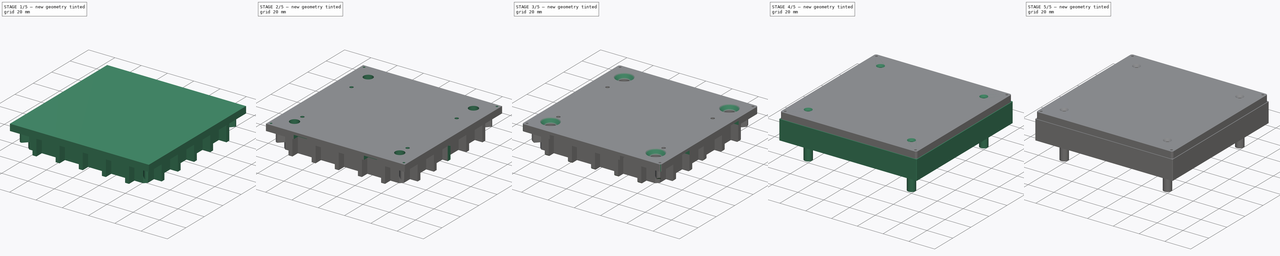
[diagram: build sequence overview — one tinted view per stage of 5, left to right]
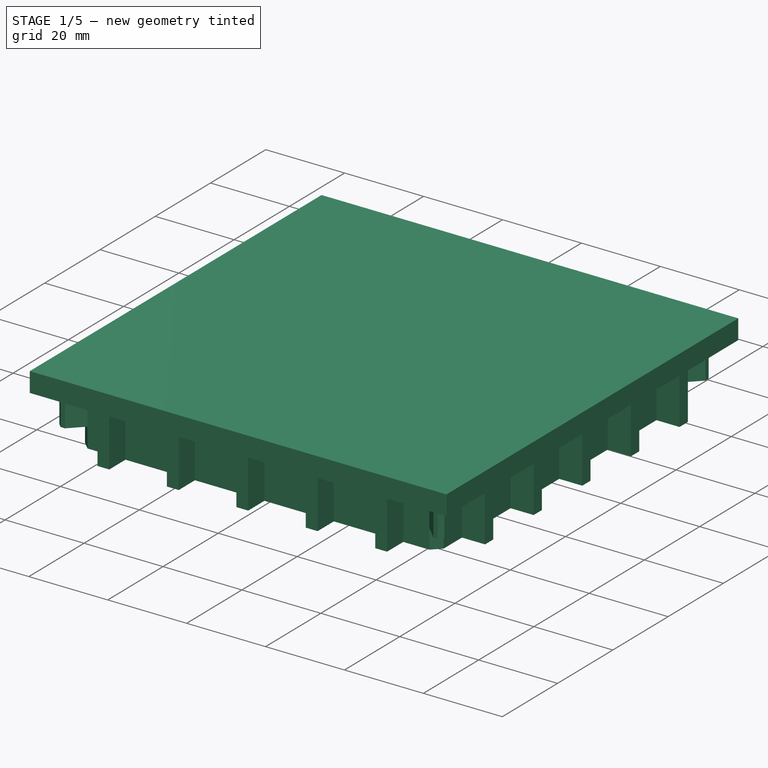
[diagram: stage 1 of 5 — iso view after this stage's code; geometry added in this stage tinted green]
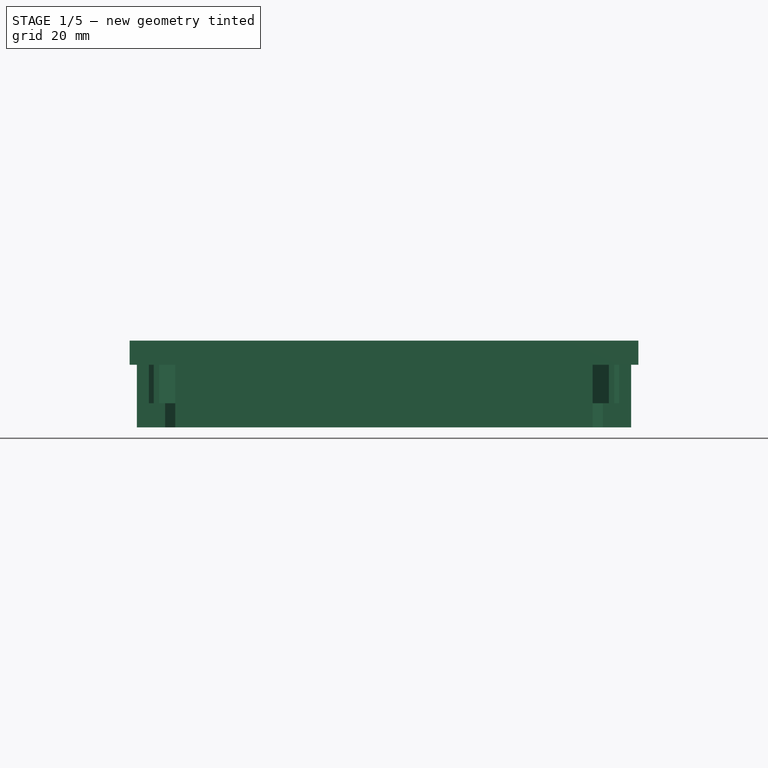
[diagram: stage 1 of 5 — front view after this stage's code; geometry added in this stage tinted green]
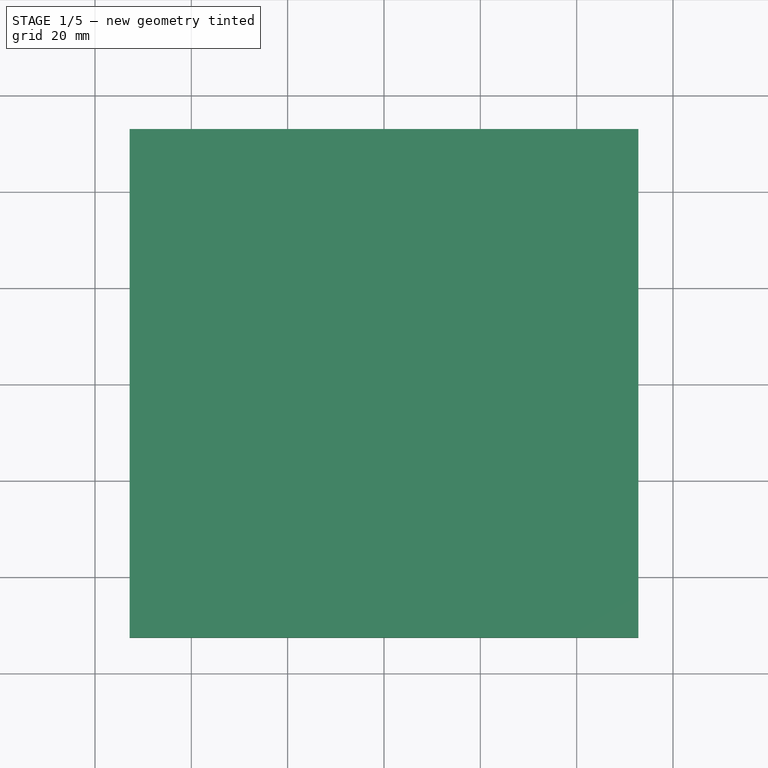
[diagram: stage 1 of 5 — top view after this stage's code; geometry added in this stage tinted green]
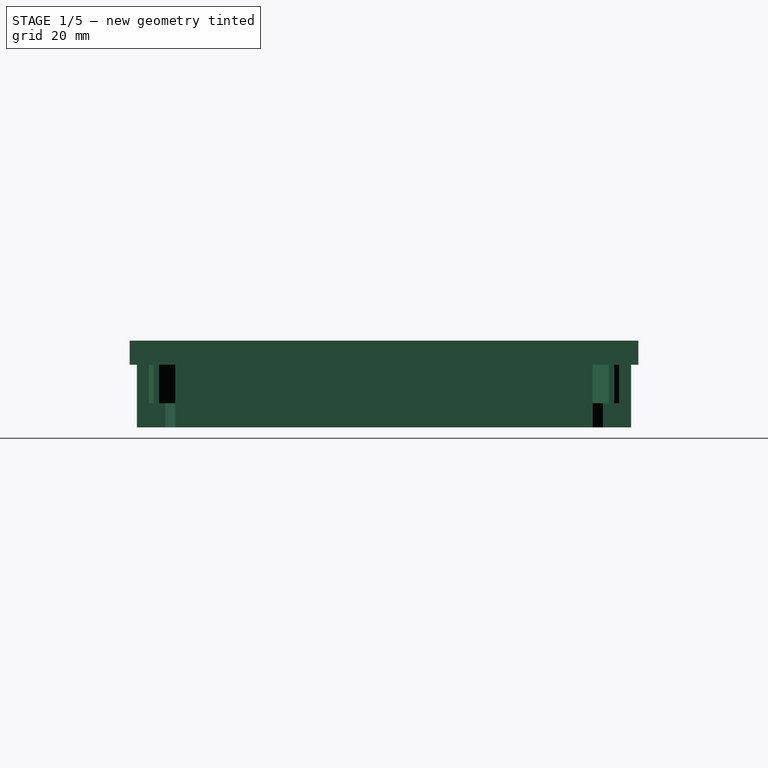
[diagram: stage 1 of 5 — right view after this stage's code; geometry added in this stage tinted green]
FCSTD DOCUMENT  (FreeCAD 0.18R15969 (Git))
Label: routing_template_3
License: All rights reserved
LicenseURL: http://en.wikipedia.org/wiki/All_rights_reserved
objects: Sketcher::SketchObject×19, PartDesign::Pad×8, PartDesign::Pocket×8, PartDesign::PolarPattern×4, PartDesign::Chamfer×4, PartDesign::Body×3, Spreadsheet::Sheet×2, Part::Feature×1, PartDesign::Fillet×1
note: 64 computed .brp shape members not serialized (recipe doc carries the construction recipe); baked Part::Feature solids carry a one-line shape summary decoded from their .brp

FEATURE [PartDesign::Body] Body002  label="G4_Unibody"
  Group = -> [Sketch008,Pad002,Sketch017,Pocket002,PolarPattern002,Sketch018,Pad,PolarPattern003,Sketch020,Pad003]
  Origin = -> Origin002
  Tip = -> Pad003
FEATURE [Sketcher::SketchObject] Sketch087
  MapMode = 5
  Support = -> [XY_Plane021]
  sketch-geometry (63):
    g0: LineSegment StartX=0 StartY=0 StartZ=0 EndX=0 EndY=51.3 EndZ=0
    g1: LineSegment StartX=0 StartY=51.3 StartZ=0 EndX=-1.5 EndY=51.3 EndZ=0
    g2: LineSegment StartX=-1.5 StartY=51.3 StartZ=0 EndX=-1.5 EndY=36.7 EndZ=0
    g3: LineSegment StartX=-1.5 StartY=36.7 StartZ=0 EndX=-16.1 EndY=36.7 EndZ=0
    g4: LineSegment StartX=-16.1 StartY=36.7 StartZ=0 EndX=-16.1 EndY=51.3 EndZ=0
    g5: LineSegment StartX=-16.1 StartY=51.3 StartZ=0 EndX=-19.1 EndY=51.3 EndZ=0
    g6: LineSegment StartX=-19.1 StartY=51.3 StartZ=0 EndX=-19.1 EndY=36.7 EndZ=0
    g7: LineSegment StartX=-19.1 StartY=36.7 StartZ=0 EndX=-33.7 EndY=36.7 EndZ=0
    g8: LineSegment StartX=-33.7 StartY=36.7 StartZ=0 EndX=-33.7 EndY=51.3 EndZ=0
    g9: LineSegment StartX=-33.7 StartY=51.3 StartZ=0 EndX=-36.7 EndY=51.3 EndZ=0
    g10: LineSegment StartX=-36.7 StartY=51.3 StartZ=0 EndX=-36.7 EndY=38.8213 EndZ=0
    g11: LineSegment StartX=-36.7 StartY=38.8213 StartZ=0 EndX=-46.6787 EndY=48.8 EndZ=0
    g12: LineSegment StartX=-46.6787 StartY=48.8 StartZ=0 EndX=-47.8 EndY=48.8 EndZ=0
    g13: LineSegment StartX=-47.8 StartY=48.8 StartZ=0 EndX=-48.8 EndY=47.8 EndZ=0
    g14: LineSegment StartX=-48.8 StartY=47.8 StartZ=0 EndX=-48.8 EndY=46.6787 EndZ=0
    g15: LineSegment StartX=-48.8 StartY=46.6787 StartZ=0 EndX=-38.8213 EndY=36.7 EndZ=0
    g16: LineSegment StartX=-38.8213 StartY=36.7 StartZ=0 EndX=-51.3 EndY=36.7 EndZ=0
    g17: LineSegment StartX=-51.3 StartY=36.7 StartZ=0 EndX=-51.3 EndY=33.7 EndZ=0
    g18: LineSegment StartX=-51.3 StartY=33.7 StartZ=0 EndX=-36.7 EndY=33.7 EndZ=0
    g19: LineSegment StartX=-36.7 StartY=33.7 StartZ=0 EndX=-36.7 EndY=19.1 EndZ=0
    g20: LineSegment StartX=-36.7 StartY=19.1 StartZ=0 EndX=-51.3 EndY=19.1 EndZ=0
    g21: LineSegment StartX=-51.3 StartY=19.1 StartZ=0 EndX=-51.3 EndY=16.1 EndZ=0
    g22: LineSegment StartX=-51.3 StartY=16.1 StartZ=0 EndX=-36.7 EndY=16.1 EndZ=0
    g23: LineSegment StartX=-36.7 StartY=16.1 StartZ=0 EndX=-36.7 EndY=1.5 EndZ=0
    g24: LineSegment StartX=-36.7 StartY=1.5 StartZ=0 EndX=-51.3 EndY=1.5 EndZ=0
    g25: LineSegment StartX=-51.3 StartY=1.5 StartZ=0 EndX=-51.3 EndY=0 EndZ=0
    g26: LineSegment StartX=-51.3 StartY=0 StartZ=0 EndX=0 EndY=0 EndZ=0
    g27: LineSegment StartX=-33.7 StartY=33.7 StartZ=0 EndX=-19.1 EndY=33.7 EndZ=0
    g28: LineSegment StartX=-19.1 StartY=33.7 StartZ=0 EndX=-19.1 EndY=19.1 EndZ=0
    g29: LineSegment StartX=-19.1 StartY=19.1 StartZ=0 EndX=-33.7 EndY=19.1 EndZ=0
    g30: LineSegment StartX=-33.7 StartY=19.1 StartZ=0 EndX=-33.7 EndY=33.7 EndZ=0
    g31: LineSegment StartX=-16.1 StartY=33.7 StartZ=0 EndX=-1.5 EndY=33.7 EndZ=0
    g32: LineSegment StartX=-1.5 StartY=33.7 StartZ=0 EndX=-1.5 EndY=19.1 EndZ=0
    g33: LineSegment StartX=-1.5 StartY=19.1 StartZ=0 EndX=-16.1 EndY=19.1 EndZ=0
    g34: LineSegment StartX=-16.1 StartY=19.1 StartZ=0 EndX=-16.1 EndY=33.7 EndZ=0
    g35: LineSegment StartX=-33.7 StartY=16.1 StartZ=0 EndX=-19.1 EndY=16.1 EndZ=0
    g36: LineSegment StartX=-19.1 StartY=16.1 StartZ=0 EndX=-19.1 EndY=1.5 EndZ=0
    g37: LineSegment StartX=-19.1 StartY=1.5 StartZ=0 EndX=-33.7 EndY=1.5 EndZ=0
    g38: LineSegment StartX=-33.7 StartY=1.5 StartZ=0 EndX=-33.7 EndY=16.1 EndZ=0
    g39: LineSegment StartX=-16.1 StartY=16.1 StartZ=0 EndX=-1.5 EndY=16.1 EndZ=0
    g40: LineSegment StartX=-1.5 StartY=16.1 StartZ=0 EndX=-1.5 EndY=1.5 EndZ=0
    g41: LineSegment StartX=-1.5 StartY=1.5 StartZ=0 EndX=-16.1 EndY=1.5 EndZ=0
    g42: LineSegment StartX=-16.1 StartY=1.5 StartZ=0 EndX=-16.1 EndY=16.1 EndZ=0
    g43: LineSegment [constr] StartX=-36.7 StartY=1.5 StartZ=0 EndX=-33.7 EndY=1.5 EndZ=0
    g44: LineSegment [constr] StartX=-19.1 StartY=1.5 StartZ=0 EndX=-16.1 EndY=1.5 EndZ=0
    g45: LineSegment [constr] StartX=-1.5 StartY=16.1 StartZ=0 EndX=-1.5 EndY=19.1 EndZ=0
    g46: LineSegment [constr] StartX=-1.5 StartY=33.7 StartZ=0 EndX=-1.5 EndY=36.7 EndZ=0
    g47: LineSegment [constr] StartX=-16.1 StartY=16.1 StartZ=0 EndX=-19.1 EndY=16.1 EndZ=0
    g48: LineSegment [constr] StartX=-16.1 StartY=16.1 StartZ=0 EndX=-16.1 EndY=19.1 EndZ=0
    g49: LineSegment [constr] StartX=-36.7 StartY=16.1 StartZ=0 EndX=-33.7 EndY=16.1 EndZ=0
    g50: LineSegment [constr] StartX=-16.1 StartY=33.7 StartZ=0 EndX=-16.1 EndY=36.7 EndZ=0
    g51: LineSegment [constr] StartX=-19.1 StartY=16.1 StartZ=0 EndX=-19.1 EndY=19.1 EndZ=0
    g52: LineSegment [constr] StartX=-19.1 StartY=19.1 StartZ=0 EndX=-16.1 EndY=19.1 EndZ=0
    g53: LineSegment [constr] StartX=-33.7 StartY=16.1 StartZ=0 EndX=-33.7 EndY=19.1 EndZ=0
    g54: LineSegment [constr] StartX=-19.1 StartY=33.7 StartZ=0 EndX=-16.1 EndY=33.7 EndZ=0
    g55: LineSegment [constr] StartX=-19.1 StartY=36.7 StartZ=0 EndX=-19.1 EndY=33.7 EndZ=0
    g56: LineSegment [constr] StartX=-19.1 StartY=36.7 StartZ=0 EndX=-16.1 EndY=36.7 EndZ=0
    g57: LineSegment [constr] StartX=-36.7 StartY=33.7 StartZ=0 EndX=-33.7 EndY=33.7 EndZ=0
    g58: LineSegment [constr] StartX=-33.7 StartY=33.7 StartZ=0 EndX=-33.7 EndY=36.7 EndZ=0
    g59: LineSegment [constr] StartX=-36.7 StartY=19.1 StartZ=0 EndX=-33.7 EndY=19.1 EndZ=0
    g60: LineSegment [constr] StartX=-36.7 StartY=19.1 StartZ=0 EndX=-36.7 EndY=16.1 EndZ=0
    g61: LineSegment [constr] StartX=-38.8213 StartY=36.7 StartZ=0 EndX=-33.7 EndY=36.7 EndZ=0
    g62: LineSegment [constr] StartX=-36.7 StartY=33.7 StartZ=0 EndX=-36.7 EndY=38.8213 EndZ=0
  constraints (168):
    c: Coincident(g-1,g0)
    c: PointOnObject(g0,g-2)
    c: Coincident(g0,g1)
    c: Horizontal(g1)
    c: Coincident(g1,g2)
    c: Vertical(g2)
    c: Coincident(g2,g3)
    c: Coincident(g3,g4)
    c: Vertical(g4)
    c: Coincident(g4,g5)
    c: Coincident(g5,g6)
    c: Vertical(g6)
    c: Coincident(g6,g7)
    c: Coincident(g7,g8)
    c: Vertical(g8)
    c: Coincident(g8,g9)
    c: Horizontal(g9)
    c: Coincident(g9,g10)
    c: Vertical(g10)
    c: Coincident(g10,g11)
    c: Coincident(g11,g12)
    c: Horizontal(g12)
    c: Coincident(g12,g13)
    c: Coincident(g13,g14)
    c: Vertical(g14)
    c: Coincident(g14,g15)
    c: Coincident(g15,g16)
    c: Horizontal(g16)
    c: Coincident(g16,g17)
    c: Vertical(g17)
    c: Coincident(g17,g18)
    c: Horizontal(g18)
    c: Coincident(g18,g19)
    c: Coincident(g19,g20)
    c: Horizontal(g20)
    c: Coincident(g20,g21)
    c: Coincident(g21,g22)
    c: Horizontal(g22)
    c: Coincident(g22,g23)
    c: Coincident(g23,g24)
    c: Horizontal(g24)
    c: Coincident(g24,g25)
    c: PointOnObject(g25,g-1)
    c: Coincident(g25,g26)
    c: Coincident(g26,g0)
    c: Vertical(g25)
    c: Vertical(g21)
    c: Horizontal(g5)
    c: Vertical(g19)
    c: Vertical(g23)
    c: Horizontal(g7)
    c: Horizontal(g3)
    c: Coincident(g27,g28)
    c: Coincident(g28,g29)
    c: Coincident(g29,g30)
    c: Coincident(g30,g27)
    c: Horizontal(g27)
    c: Horizontal(g29)
    c: Vertical(g28)
    c: Vertical(g30)
    c: Coincident(g31,g32)
    c: Coincident(g32,g33)
    c: Coincident(g33,g34)
    c: Coincident(g34,g31)
    c: Horizontal(g31)
    c: Horizontal(g33)
    c: Vertical(g32)
    c: Vertical(g34)
    c: Coincident(g35,g36)
    c: Coincident(g36,g37)
    c: Coincident(g37,g38)
    c: Coincident(g38,g35)
    c: Horizontal(g35)
    c: Horizontal(g37)
    c: Vertical(g36)
    c: Vertical(g38)
    c: Coincident(g39,g40)
    c: Coincident(g40,g41)
    c: Coincident(g41,g42)
    c: Coincident(g42,g39)
    c: Horizontal(g39)
    c: Horizontal(g41)
    c: Vertical(g40)
    c: Vertical(g42)
    c: Coincident(g43,g23)
    c: Coincident(g43,g37)
    c: Coincident(g44,g36)
    c: Coincident(g44,g41)
    c: Horizontal(g43)
    c: Horizontal(g44)
    c: Equal(g26,g0)
    c: DistanceX(g26,g26) = 51.3
    c: DistanceY(g25,g25) = 1.5
    c: Equal(g25,g1)
    c: Coincident(g45,g39)
    c: Coincident(g45,g32)
    c: Coincident(g46,g31)
    c: Coincident(g46,g2)
    c: Vertical(g46)
    c: Vertical(g45)
    c: Equal(g46,g45)
    c: Equal(g45,g44)
    c: Equal(g44,g43)
    c: Equal(g24,g37)
    c: Equal(g37,g41)
    c: Equal(g40,g32)
    c: Equal(g32,g2)
    c: Coincident(g47,g39)
    c: Coincident(g47,g35)
    c: Coincident(g48,g39)
    c: Coincident(g48,g33)
    c: Coincident(g49,g22)
    c: Coincident(g49,g35)
    c: Horizontal(g49)
    c: Coincident(g50,g31)
    c: Coincident(g50,g3)
    c: Vertical(g50)
    c: Vertical(g48)
    c: Horizontal(g47)
    c: Coincident(g51,g35)
    c: Coincident(g51,g28)
    c: Coincident(g52,g28)
    c: Coincident(g52,g33)
    c: Horizontal(g52)
    c: Vertical(g51)
    c: Coincident(g53,g35)
    c: Coincident(g53,g29)
    c: Coincident(g54,g27)
    c: Coincident(g54,g31)
    c: Coincident(g55,g6)
    c: Coincident(g55,g27)
    c: Coincident(g56,g6)
    c: Coincident(g56,g3)
    c: Coincident(g57,g18)
    c: Coincident(g57,g27)
    c: Coincident(g58,g27)
    c: Coincident(g58,g7)
    c: Horizontal(g57)
    c: Vertical(g58)
    c: Horizontal(g54)
    c: Vertical(g55)
    c: Horizontal(g56)
    c: Vertical(g53)
    c: Coincident(g59,g19)
    c: Coincident(g59,g29)
    c: Horizontal(g59)
    c: Coincident(g60,g19)
    c: Coincident(g60,g22)
    c: Vertical(g60)
    c: Equal(g14,g12)
    c: Angle(g14,g13) = 2.35619
    c: Perpendicular(g15,g13)
    c: Perpendicular(g11,g13)
    c: Equal(g6,g8)
    c: Equal(g8,g18)
    c: Equal(g18,g20)
    c: Equal(g20,g24)
    c: Coincident(g61,g15)
    c: Coincident(g61,g7)
    c: Coincident(g62,g18)
    c: Coincident(g62,g10)
    c: Vertical(g62)
    c: Horizontal(g61)
    c: Equal(g15,g11)
    c: DistanceY(g21,g21) = 3
    c: DistanceY(g13,g12) = 1
    c: Distance(g15,g10) = 3
    c: DistanceX(g14,g0) = 48.8
FEATURE [PartDesign::Pad] Pad044
  Length = 13
  Length2 = 100
  Profile = -> Sketch087
  Reversed = true
  Type = 0
FEATURE [PartDesign::PolarPattern] PolarPattern015
  Angle = 360
  Axis = -> Sketch087 [N_Axis]
  BaseFeature = -> Pad044
  Occurrences = 4
  Originals = -> [Pad044]
  Refine = true
FEATURE [Sketcher::SketchObject] Sketch
  MapMode = 5
  Placement = pos=(0,0,-13) rot=(1,0,0;3.14159rad)
  Support = -> [PolarPattern015]
  sketch-geometry (14):
    g0: LineSegment StartX=-62.7696 StartY=26 StartZ=0 EndX=-62.7696 EndY=-26 EndZ=0
    g1: LineSegment StartX=-62.7696 StartY=-26 StartZ=0 EndX=-26 EndY=-62.7696 EndZ=0
    g2: LineSegment StartX=-26 StartY=-62.7696 StartZ=0 EndX=26 EndY=-62.7696 EndZ=0
    g3: LineSegment StartX=26 StartY=-62.7696 StartZ=0 EndX=62.7696 EndY=-26 EndZ=0
    g4: LineSegment StartX=62.7696 StartY=-26 StartZ=0 EndX=62.7696 EndY=26 EndZ=0
    g5: LineSegment StartX=62.7696 StartY=26 StartZ=0 EndX=26 EndY=62.7696 EndZ=0
    g6: LineSegment StartX=26 StartY=62.7696 StartZ=0 EndX=-26 EndY=62.7696 EndZ=0
    g7: LineSegment StartX=-26 StartY=62.7696 StartZ=0 EndX=-62.7696 EndY=26 EndZ=0
    g8: Circle [constr] CenterX=0 CenterY=0 CenterZ=0 NormalX=0 NormalY=0 NormalZ=1 AngleXU=0 Radius=67.9413
    g9: LineSegment StartX=-80 StartY=80 StartZ=0 EndX=-80 EndY=-80 EndZ=0
    g10: LineSegment StartX=-80 StartY=-80 StartZ=0 EndX=80 EndY=-80 EndZ=0
    g11: LineSegment StartX=80 StartY=-80 StartZ=0 EndX=80 EndY=80 EndZ=0
    g12: LineSegment StartX=80 StartY=80 StartZ=0 EndX=-80 EndY=80 EndZ=0
    g13: Circle [constr] CenterX=0 CenterY=0 CenterZ=0 NormalX=0 NormalY=0 NormalZ=1 AngleXU=0 Radius=113.137
  constraints (34):
    c: Coincident(g0,g1)
    c: Coincident(g1,g2)
    c: Coincident(g2,g3)
    c: Coincident(g3,g4)
    c: Coincident(g4,g5)
    c: Coincident(g5,g6)
    c: Coincident(g6,g7)
    c: Coincident(g7,g0)
    c: Equal(g0, g1-g7) x7
    c: PointOnObject(g0,g8)
    c: PointOnObject(g1,g8)
    c: PointOnObject(g2,g8)
    c: PointOnObject(g3,g8)
    c: PointOnObject(g4,g8)
    c: PointOnObject(g5,g8)
    c: PointOnObject(g6,g8)
    c: PointOnObject(g7,g8)
    c: Coincident(g8,g-1)
    c: Horizontal(g6)
    c: DistanceX(g6,g6) = 52
    c: Coincident(g9,g10)
    c: Coincident(g10,g11)
    c: Coincident(g11,g12)
    c: Coincident(g12,g9)
    c: Equal(g9,g10)
    c: Equal(g9,g11)
    c: Equal(g9,g12)
    c: PointOnObject(g9,g13)
    c: PointOnObject(g10,g13)
    c: PointOnObject(g11,g13)
    c: PointOnObject(g12,g13)
    c: Coincident(g13,g-1)
    c: Horizontal(g12)
    c: DistanceX(g12,g12) = 160
FEATURE [PartDesign::Pocket] Pocket
  BaseFeature = -> PolarPattern015
  Length = 5
  Length2 = 100
  Profile = -> Sketch
  Refine = true
  Type = 0
FEATURE [Sketcher::SketchObject] Sketch089
  MapMode = 5
  sketch-geometry (5):
    g0: LineSegment StartX=-52.8 StartY=52.8 StartZ=0 EndX=-52.8 EndY=-52.8 EndZ=0
    g1: LineSegment StartX=-52.8 StartY=-52.8 StartZ=0 EndX=52.8 EndY=-52.8 EndZ=0
    g2: LineSegment StartX=52.8 StartY=-52.8 StartZ=0 EndX=52.8 EndY=52.8 EndZ=0
    g3: LineSegment StartX=52.8 StartY=52.8 StartZ=0 EndX=-52.8 EndY=52.8 EndZ=0
    g4: Circle [constr] CenterX=0 CenterY=0 CenterZ=0 NormalX=0 NormalY=0 NormalZ=1 AngleXU=0 Radius=74.6705
  constraints (14):
    c: Coincident(g0,g1)
    c: Coincident(g1,g2)
    c: Coincident(g2,g3)
    c: Coincident(g3,g0)
    c: Equal(g0,g1)
    c: Equal(g0,g2)
    c: Equal(g0,g3)
    c: PointOnObject(g0,g4)
    c: PointOnObject(g1,g4)
    c: PointOnObject(g2,g4)
    c: PointOnObject(g3,g4)
    c: Coincident(g4,g-1)
    c: Horizontal(g3)
    c: DistanceX(g3,g3) = 105.6
FEATURE [PartDesign::Pad] Pad045
  BaseFeature = -> Pocket
  Length = 5
  Length2 = 100
  Profile = -> Sketch089
  Refine = true
  Type = 0
FEATURE [Sketcher::SketchObject] Sketch090
  MapMode = 5
  Placement = pos=(48.8,0,0) rot=(0.57735,0.57735,0.57735;2.0944rad)
  Support = -> [Pad045]
FEATURE [Part::Feature] Part__Feature  label="grid_frontpanel_P16"
  Placement = pos=(0,0,5) rot=(0,0,1;0rad)
  shape: bbox 106.6 x 106.6 x 1.5 mm, 82 faces (baked)
FEATURE [Sketcher::SketchObject] Sketch092
  MapMode = 5
  Placement = pos=(0,0,5) rot=(0,0,1;0rad)
  Support = -> [Pad045]
  expr: Constraints[0] = 13.335 + 8.5
  expr: Constraints[2] = 40.005 - 8.5
  sketch-geometry (9):
    g0: Circle CenterX=-40.005 CenterY=21.835 CenterZ=0 NormalX=0 NormalY=0 NormalZ=1 AngleXU=0 Radius=1.35
    g1: Circle CenterX=40.005 CenterY=21.835 CenterZ=0 NormalX=0 NormalY=0 NormalZ=1 AngleXU=0 Radius=1.35
    g2: Circle CenterX=40.005 CenterY=-31.505 CenterZ=0 NormalX=0 NormalY=0 NormalZ=1 AngleXU=0 Radius=1.35
    g3: Circle CenterX=-40.005 CenterY=-31.505 CenterZ=0 NormalX=0 NormalY=0 NormalZ=1 AngleXU=0 Radius=1.35
    g4: LineSegment [constr] StartX=-40.005 StartY=21.835 StartZ=0 EndX=0 EndY=21.835 EndZ=0
    g5: LineSegment [constr] StartX=0 StartY=21.835 StartZ=0 EndX=40.005 EndY=21.835 EndZ=0
    g6: LineSegment [constr] StartX=-40.005 StartY=21.835 StartZ=0 EndX=-40.005 EndY=-31.505 EndZ=0
    g7: LineSegment [constr] StartX=-40.005 StartY=-31.505 StartZ=0 EndX=40.005 EndY=-31.505 EndZ=0
    g8: LineSegment [constr] StartX=40.005 StartY=-31.505 StartZ=0 EndX=40.005 EndY=21.835 EndZ=0
  constraints (23):
    c: DistanceY(g-1,g0) = 21.835
    c: DistanceX(g0,g-1) = 40.005
    c: DistanceY(g3,g-1) = 31.505
    c: Coincident(g4,g0)
    c: PointOnObject(g4,g-2)
    c: Horizontal(g4)
    c: Coincident(g5,g4)
    c: Coincident(g5,g1)
    c: Horizontal(g5)
    c: Equal(g5,g4)
    c: Coincident(g6,g0)
    c: Coincident(g6,g3)
    c: Vertical(g6)
    c: Coincident(g7,g3)
    c: Coincident(g7,g2)
    c: Horizontal(g7)
    c: Coincident(g8,g2)
    c: Coincident(g8,g1)
    c: Vertical(g8)
    c: Radius(g2) = 1.35
    c: Equal(g2,g3)
    c: Equal(g2,g0)
    c: Equal(g2,g1)
FEATURE [Sketcher::SketchObject] Sketch094
  MapMode = 5
  Placement = pos=(0,0,0) rot=(1,0,0;3.14159rad)
  Support = -> [Pad045]
FEATURE [Sketcher::SketchObject] Sketch095
  ExternalGeometry = -> [Pad045]
  MapMode = 5
  Placement = pos=(0,0,-13) rot=(1,0,0;3.14159rad)
  Support = -> [Pad045]
  sketch-geometry (17):
    g0: LineSegment StartX=-45.4454 StartY=-43.3241 StartZ=0 EndX=-45.4454 EndY=43.3241 EndZ=0
    g1: LineSegment StartX=-43.3241 StartY=45.4454 StartZ=0 EndX=-45.4454 EndY=43.3241 EndZ=0
    g2: LineSegment StartX=-43.3241 StartY=45.4454 StartZ=0 EndX=43.3241 EndY=45.4454 EndZ=0
    g3: LineSegment StartX=43.3241 StartY=45.4454 StartZ=0 EndX=45.4454 EndY=43.3241 EndZ=0
    g4: LineSegment StartX=45.4454 StartY=43.3241 StartZ=0 EndX=45.4454 EndY=-43.3241 EndZ=0
    g5: LineSegment StartX=45.4454 StartY=-43.3241 StartZ=0 EndX=43.3241 EndY=-45.4454 EndZ=0
    g6: LineSegment StartX=43.3241 StartY=-45.4454 StartZ=0 EndX=-43.3241 EndY=-45.4454 EndZ=0
    g7: LineSegment StartX=-43.3241 StartY=-45.4454 StartZ=0 EndX=-45.4454 EndY=-43.3241 EndZ=0
    g8: LineSegment [constr] StartX=-26.67 StartY=26.67 StartZ=0 EndX=-26.67 EndY=-26.67 EndZ=0
    g9: LineSegment [constr] StartX=-26.67 StartY=-26.67 StartZ=0 EndX=26.67 EndY=-26.67 EndZ=0
    g10: LineSegment [constr] StartX=26.67 StartY=-26.67 StartZ=0 EndX=26.67 EndY=26.67 EndZ=0
    g11: LineSegment [constr] StartX=26.67 StartY=26.67 StartZ=0 EndX=-26.67 EndY=26.67 EndZ=0
    g12: Circle [constr] CenterX=0 CenterY=0 CenterZ=0 NormalX=0 NormalY=0 NormalZ=1 AngleXU=0 Radius=37.7171
    g13: Circle CenterX=-26.67 CenterY=26.67 CenterZ=0 NormalX=0 NormalY=0 NormalZ=1 AngleXU=0 Radius=5
    g14: Circle CenterX=26.67 CenterY=26.67 CenterZ=0 NormalX=0 NormalY=0 NormalZ=1 AngleXU=0 Radius=5
    g15: Circle CenterX=26.67 CenterY=-26.67 CenterZ=0 NormalX=0 NormalY=0 NormalZ=1 AngleXU=0 Radius=5
    g16: Circle CenterX=-26.67 CenterY=-26.67 CenterZ=0 NormalX=0 NormalY=0 NormalZ=1 AngleXU=0 Radius=5
  constraints (37):
    c: Coincident(g0,g-6)
    c: Coincident(g0,g-3)
    c: Coincident(g1,g-3)
    c: Coincident(g1,g0)
    c: Coincident(g2,g1)
    c: Coincident(g2,g-4)
    c: Coincident(g3,g2)
    c: Coincident(g3,g-4)
    c: Coincident(g4,g3)
    c: Coincident(g4,g-5)
    c: Coincident(g5,g4)
    c: Coincident(g5,g-5)
    c: Coincident(g6,g5)
    c: Coincident(g6,g-6)
    c: Coincident(g7,g6)
    c: Coincident(g7,g0)
    c: Coincident(g8,g9)
    c: Coincident(g9,g10)
    c: Coincident(g10,g11)
    c: Coincident(g11,g8)
    c: Equal(g8,g9)
    c: Equal(g8,g10)
    c: Equal(g8,g11)
    c: PointOnObject(g8,g12)
    c: PointOnObject(g9,g12)
    c: PointOnObject(g10,g12)
    c: PointOnObject(g11,g12)
    c: Coincident(g12,g-1)
    c: Horizontal(g11)
    c: DistanceX(g11,g11) = 53.34
    c: Coincident(g14,g10)
    c: Coincident(g15,g9)
    c: Coincident(g16,g8)
    c: Radius(g16) = 5
    c: Equal(g16,g13)
    c: Equal(g16,g14)
    c: Equal(g16,g15)
FEATURE [PartDesign::Pad] Pad046
  BaseFeature = -> Pad045
  Length = 13
  Length2 = 100
  Profile = -> Sketch095
  Refine = true
  Reversed = true
  Type = 0
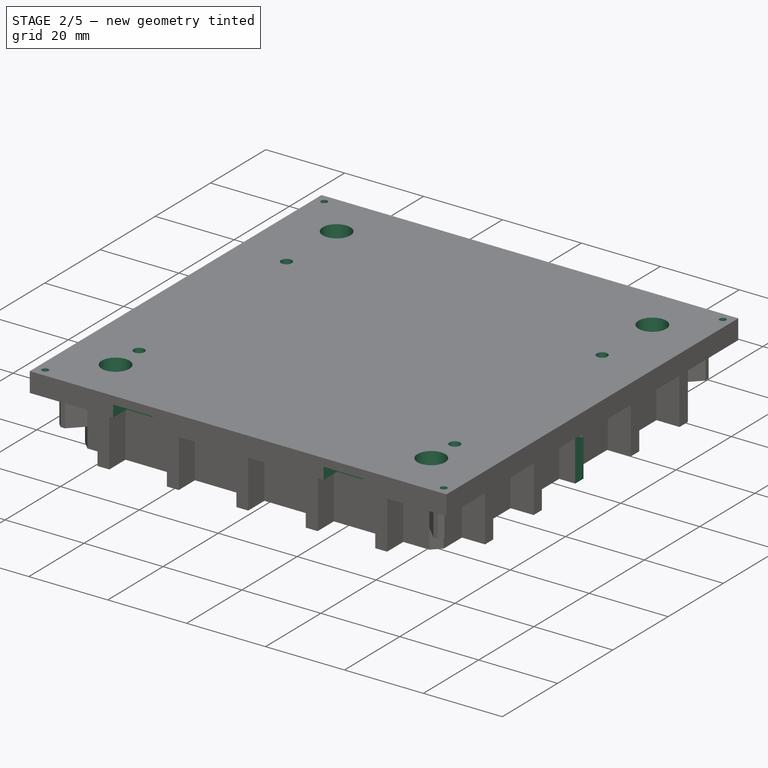
[diagram: stage 2 of 5 — iso view after this stage's code; geometry added in this stage tinted green]
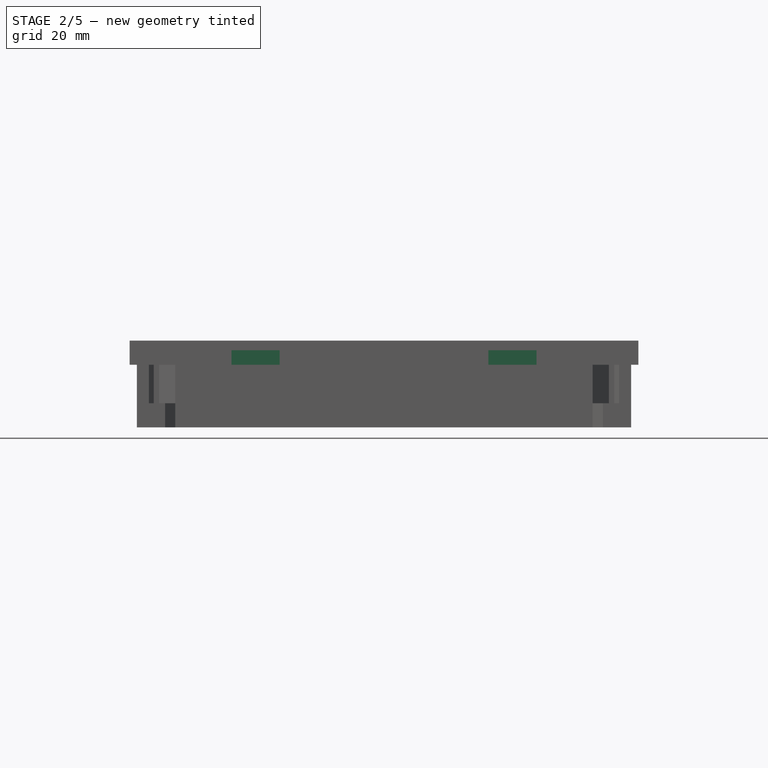
[diagram: stage 2 of 5 — front view after this stage's code; geometry added in this stage tinted green]
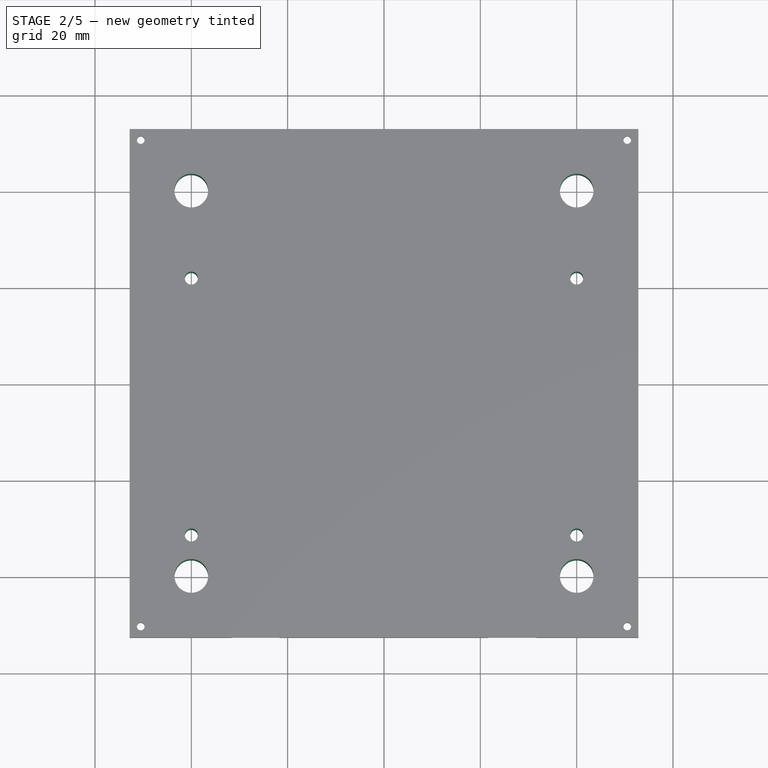
[diagram: stage 2 of 5 — top view after this stage's code; geometry added in this stage tinted green]
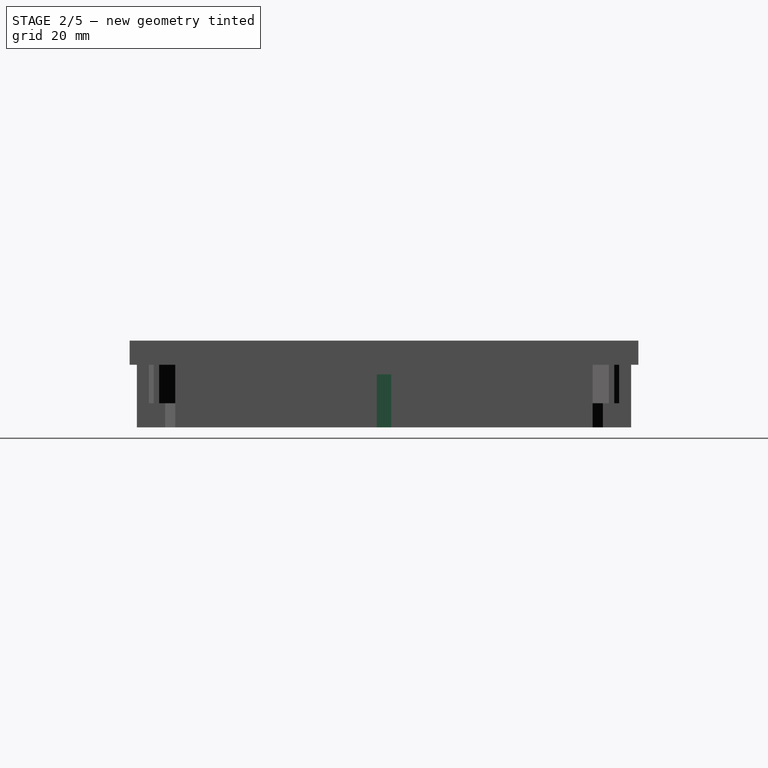
[diagram: stage 2 of 5 — right view after this stage's code; geometry added in this stage tinted green]
FEATURE [PartDesign::Pocket] Pocket003
  BaseFeature = -> Pad046
  Length = 5
  Length2 = 100
  Profile = -> Sketch092
  Refine = true
  Type = 1
FEATURE [Sketcher::SketchObject] Sketch096
  MapMode = 5
  Placement = pos=(0,0,-13) rot=(1,0,0;3.14159rad)
  Support = -> [Pocket003]
FEATURE [Sketcher::SketchObject] Sketch097
  MapMode = 5
  Placement = pos=(0,0,5) rot=(0,0,1;0rad)
  sketch-geometry (9):
    g0: LineSegment [constr] StartX=-50.5 StartY=50.5 StartZ=0 EndX=-50.5 EndY=-50.5 EndZ=0
    g1: LineSegment [constr] StartX=-50.5 StartY=-50.5 StartZ=0 EndX=50.5 EndY=-50.5 EndZ=0
    g2: LineSegment [constr] StartX=50.5 StartY=-50.5 StartZ=0 EndX=50.5 EndY=50.5 EndZ=0
    g3: LineSegment [constr] StartX=50.5 StartY=50.5 StartZ=0 EndX=-50.5 EndY=50.5 EndZ=0
    g4: Circle [constr] CenterX=0 CenterY=0 CenterZ=0 NormalX=0 NormalY=0 NormalZ=1 AngleXU=0 Radius=71.4178
    g5: Circle CenterX=-50.5 CenterY=50.5 CenterZ=0 NormalX=0 NormalY=0 NormalZ=1 AngleXU=0 Radius=0.8
    g6: Circle CenterX=50.5 CenterY=50.5 CenterZ=0 NormalX=0 NormalY=0 NormalZ=1 AngleXU=0 Radius=0.8
    g7: Circle CenterX=-50.5 CenterY=-50.5 CenterZ=0 NormalX=0 NormalY=0 NormalZ=1 AngleXU=0 Radius=0.8
    g8: Circle CenterX=50.5 CenterY=-50.5 CenterZ=0 NormalX=0 NormalY=0 NormalZ=1 AngleXU=0 Radius=0.8
  constraints (22):
    c: Coincident(g0,g1)
    c: Coincident(g1,g2)
    c: Coincident(g2,g3)
    c: Coincident(g3,g0)
    c: Equal(g0,g1)
    c: Equal(g0,g2)
    c: Equal(g0,g3)
    c: PointOnObject(g0,g4)
    c: PointOnObject(g1,g4)
    c: PointOnObject(g2,g4)
    c: PointOnObject(g3,g4)
    c: Coincident(g4,g-1)
    c: DistanceX(g3,g3) = 101
    c: Horizontal(g3)
    c: Coincident(g5,g0)
    c: Coincident(g6,g2)
    c: Coincident(g7,g0)
    c: Coincident(g8,g1)
    c: Radius(g8) = 0.8
    c: Equal(g8,g6)
    c: Equal(g8,g5)
    c: Equal(g8,g7)
FEATURE [PartDesign::Pocket] Pocket007
  BaseFeature = -> Pocket003
  Length = 5
  Length2 = 100
  Profile = -> Sketch097
  Refine = true
  Type = 0
FEATURE [Sketcher::SketchObject] Sketch098
  MapMode = 5
  Placement = pos=(0,0,-13) rot=(1,0,0;3.14159rad)
  Support = -> [Pocket007]
  expr: Constraints[12] = 40.005 * 2
  sketch-geometry (9):
    g0: LineSegment [constr] StartX=-40.005 StartY=40.005 StartZ=0 EndX=-40.005 EndY=-40.005 EndZ=0
    g1: LineSegment [constr] StartX=-40.005 StartY=-40.005 StartZ=0 EndX=40.005 EndY=-40.005 EndZ=0
    g2: LineSegment [constr] StartX=40.005 StartY=-40.005 StartZ=0 EndX=40.005 EndY=40.005 EndZ=0
    g3: LineSegment [constr] StartX=40.005 StartY=40.005 StartZ=0 EndX=-40.005 EndY=40.005 EndZ=0
    g4: Circle [constr] CenterX=0 CenterY=0 CenterZ=0 NormalX=0 NormalY=0 NormalZ=1 AngleXU=0 Radius=56.5756
    g5: Circle CenterX=-40.005 CenterY=40.005 CenterZ=0 NormalX=0 NormalY=0 NormalZ=1 AngleXU=0 Radius=3.5
    g6: Circle CenterX=40.005 CenterY=40.005 CenterZ=0 NormalX=0 NormalY=0 NormalZ=1 AngleXU=0 Radius=3.5
    g7: Circle CenterX=40.005 CenterY=-40.005 CenterZ=0 NormalX=0 NormalY=0 NormalZ=1 AngleXU=0 Radius=3.5
    g8: Circle CenterX=-40.005 CenterY=-40.005 CenterZ=0 NormalX=0 NormalY=0 NormalZ=1 AngleXU=0 Radius=3.5
  constraints (22):
    c: Coincident(g0,g1)
    c: Coincident(g1,g2)
    c: Coincident(g2,g3)
    c: Coincident(g3,g0)
    c: Equal(g0,g1)
    c: Equal(g0,g2)
    c: Equal(g0,g3)
    c: PointOnObject(g0,g4)
    c: PointOnObject(g1,g4)
    c: PointOnObject(g2,g4)
    c: PointOnObject(g3,g4)
    c: Coincident(g4,g-1)
    c: DistanceX(g3,g3) = 80.01
    c: Horizontal(g3)
    c: Coincident(g5,g0)
    c: Coincident(g6,g2)
    c: Coincident(g7,g1)
    c: Coincident(g8,g0)
    c: Diameter(g6) = 7
    c: Equal(g6,g7)
    c: Equal(g6,g8)
    c: Equal(g6,g5)
FEATURE [PartDesign::Pocket] Pocket008
  BaseFeature = -> Pocket007
  Length = 5
  Length2 = 100
  Profile = -> Sketch098
  Type = 1
FEATURE [Sketcher::SketchObject] Sketch099
  MapMode = 5
  Placement = pos=(0,0,-13) rot=(1,0,0;3.14159rad)
  Support = -> [Pocket008]
  sketch-geometry (19):
    g0: LineSegment StartX=-62.3169 StartY=5 StartZ=0 EndX=-49.5 EndY=5 EndZ=0
    g1: LineSegment StartX=-49.5 StartY=5 StartZ=0 EndX=-49.5 EndY=-5 EndZ=0
    g2: LineSegment StartX=-49.5 StartY=-5 StartZ=0 EndX=-62.3169 EndY=-5 EndZ=0
    g3: LineSegment StartX=-62.3169 StartY=-5 StartZ=0 EndX=-62.3169 EndY=5 EndZ=0
    g4: LineSegment StartX=62.3169 StartY=4.99999 StartZ=0 EndX=49.5 EndY=4.99999 EndZ=0
    g5: LineSegment StartX=49.5 StartY=4.99999 StartZ=0 EndX=49.5 EndY=-5.00001 EndZ=0
    g6: LineSegment StartX=49.5 StartY=-5.00001 StartZ=0 EndX=62.3169 EndY=-5.00001 EndZ=0
    g7: LineSegment StartX=62.3169 StartY=-5.00001 StartZ=0 EndX=62.3169 EndY=4.99999 EndZ=0
    g8: LineSegment [constr] StartX=-49.5 StartY=5 StartZ=0 EndX=0 EndY=0 EndZ=0
    g9: LineSegment [constr] StartX=-2.2299e-06 StartY=-1.94363e-07 StartZ=0 EndX=49.5 EndY=4.99999 EndZ=0
    g10: LineSegment [constr] StartX=49.5 StartY=-5.00001 StartZ=0 EndX=1.42e-14 EndY=-9e-16 EndZ=0
    g11: LineSegment [constr] StartX=1.42e-14 StartY=-9e-16 StartZ=0 EndX=-3.4e-15 EndY=-3e-16 EndZ=0
    g12: LineSegment [constr] StartX=-3.4e-15 StartY=-3e-16 StartZ=0 EndX=-49.5 EndY=-5 EndZ=0
    g13: LineSegment StartX=-5 StartY=-49.5 StartZ=0 EndX=5 EndY=-49.5 EndZ=0
    g14: LineSegment StartX=5 StartY=-49.5 StartZ=0 EndX=5 EndY=-62.3169 EndZ=0
    g15: LineSegment StartX=5 StartY=-62.3169 StartZ=0 EndX=-5 EndY=-62.3169 EndZ=0
    g16: LineSegment StartX=-5 StartY=-62.3169 StartZ=0 EndX=-5 EndY=-49.5 EndZ=0
    g17: LineSegment [constr] StartX=-5 StartY=-49.5 StartZ=0 EndX=9.6412e-09 EndY=-1.25695e-11 EndZ=0
    g18: LineSegment [constr] StartX=9.6412e-09 StartY=-1.25675e-11 StartZ=0 EndX=5 EndY=-49.5 EndZ=0
  constraints (48):
    c: Coincident(g0,g1)
    c: Coincident(g1,g2)
    c: Coincident(g2,g3)
    c: Coincident(g3,g0)
    c: Horizontal(g0)
    c: Horizontal(g2)
    c: Vertical(g1)
    c: Vertical(g3)
    c: Coincident(g4,g5)
    c: Coincident(g5,g6)
    c: Coincident(g6,g7)
    c: Coincident(g7,g4)
    c: Horizontal(g4)
    c: Horizontal(g6)
    c: Vertical(g5)
    c: Vertical(g7)
    c: DistanceX(g-1,g4) = 49.5
    c: DistanceX(g0,g-1) = 49.5
    c: Equal(g1,g5)
    c: Equal(g0,g4)
    c: Coincident(g0,g8)
    c: Coincident(g8,g-1)
    c: Coincident(g9,g4)
    c: Coincident(g5,g10)
    c: Coincident(g10,g-1)
    c: Coincident(g10,g11)
    c: Coincident(g11,g-1)
    c: Coincident(g11,g12)
    c: Coincident(g12,g1)
    c: Equal(g12,g8)
    c: Equal(g9,g10)
    c: DistanceY(g3,g3) = 10
    c: Coincident(g13,g14)
    c: Coincident(g14,g15)
    c: Coincident(g15,g16)
    c: Coincident(g16,g13)
    c: Horizontal(g13)
    c: Horizontal(g15)
    c: Vertical(g14)
    c: Vertical(g16)
    c: DistanceY(g13,g-1) = 49.5
    c: Equal(g13,g1)
    c: Equal(g2,g16)
    c: Coincident(g13,g17)
    c: Coincident(g17,g-1)
    c: Coincident(g17,g18)
    c: Coincident(g18,g13)
    c: Equal(g18,g17)
FEATURE [PartDesign::Pocket] Pocket009
  BaseFeature = -> Pocket008
  Length = 11
  Length2 = 100
  Profile = -> Sketch099
  Type = 0
FEATURE [Sketcher::SketchObject] Sketch100
  MapMode = 5
  Placement = pos=(0,0,-13) rot=(1,0,0;3.14159rad)
  Support = -> [Pocket009]
  sketch-geometry (12):
    g0: LineSegment StartX=-31.67 StartY=57.5085 StartZ=0 EndX=-21.67 EndY=57.5085 EndZ=0
    g1: LineSegment StartX=-21.67 StartY=57.5085 StartZ=0 EndX=-21.67 EndY=48 EndZ=0
    g2: LineSegment StartX=-21.67 StartY=48 StartZ=0 EndX=-31.67 EndY=48 EndZ=0
    g3: LineSegment StartX=-31.67 StartY=48 StartZ=0 EndX=-31.67 EndY=57.5085 EndZ=0
    g4: LineSegment StartX=21.67 StartY=57.5085 StartZ=0 EndX=31.67 EndY=57.5085 EndZ=0
    g5: LineSegment StartX=31.67 StartY=57.5085 StartZ=0 EndX=31.67 EndY=48 EndZ=0
    g6: LineSegment StartX=31.67 StartY=48 StartZ=0 EndX=21.67 EndY=48 EndZ=0
    g7: LineSegment StartX=21.67 StartY=48 StartZ=0 EndX=21.67 EndY=57.5085 EndZ=0
    g8: LineSegment [constr] StartX=-31.67 StartY=48 StartZ=0 EndX=-26.67 EndY=0 EndZ=0
    g9: LineSegment [constr] StartX=-26.67 StartY=0 StartZ=0 EndX=-21.67 EndY=48 EndZ=0
    g10: LineSegment [constr] StartX=21.67 StartY=48 StartZ=0 EndX=26.67 EndY=0 EndZ=0
    g11: LineSegment [constr] StartX=26.67 StartY=0 StartZ=0 EndX=31.67 EndY=48 EndZ=0
  constraints (33):
    c: Coincident(g0,g1)
    c: Coincident(g1,g2)
    c: Coincident(g2,g3)
    c: Coincident(g3,g0)
    c: Horizontal(g0)
    c: Horizontal(g2)
    c: Vertical(g1)
    c: Vertical(g3)
    c: Coincident(g4,g5)
    c: Coincident(g5,g6)
    c: Coincident(g6,g7)
    c: Coincident(g7,g4)
    c: Horizontal(g4)
    c: Horizontal(g6)
    c: Vertical(g5)
    c: Vertical(g7)
    c: Coincident(g2,g8)
    c: PointOnObject(g8,g-1)
    c: Coincident(g8,g9)
    c: Coincident(g9,g1)
    c: Coincident(g6,g10)
    c: PointOnObject(g10,g-1)
    c: Coincident(g10,g11)
    c: Coincident(g11,g5)
    c: DistanceX(g8,g-1) = 26.67
    c: DistanceX(g-1,g10) = 26.67
    c: Equal(g9,g8)
    c: Equal(g10,g11)
    c: Equal(g6,g2)
    c: Equal(g3,g7)
    c: Equal(g9,g10)
    c: DistanceY(g8,g2) = 48
    c: DistanceX(g0,g0) = 10
FEATURE [PartDesign::Pocket] Pocket010
  BaseFeature = -> Pocket009
  Length = 16
  Length2 = 100
  Profile = -> Sketch100
  Type = 0
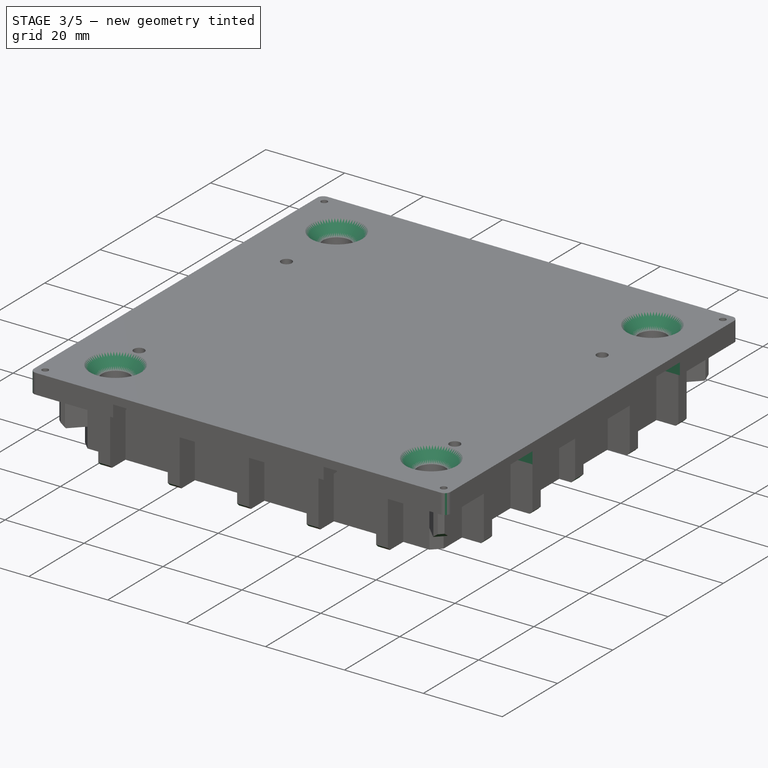
[diagram: stage 3 of 5 — iso view after this stage's code; geometry added in this stage tinted green]
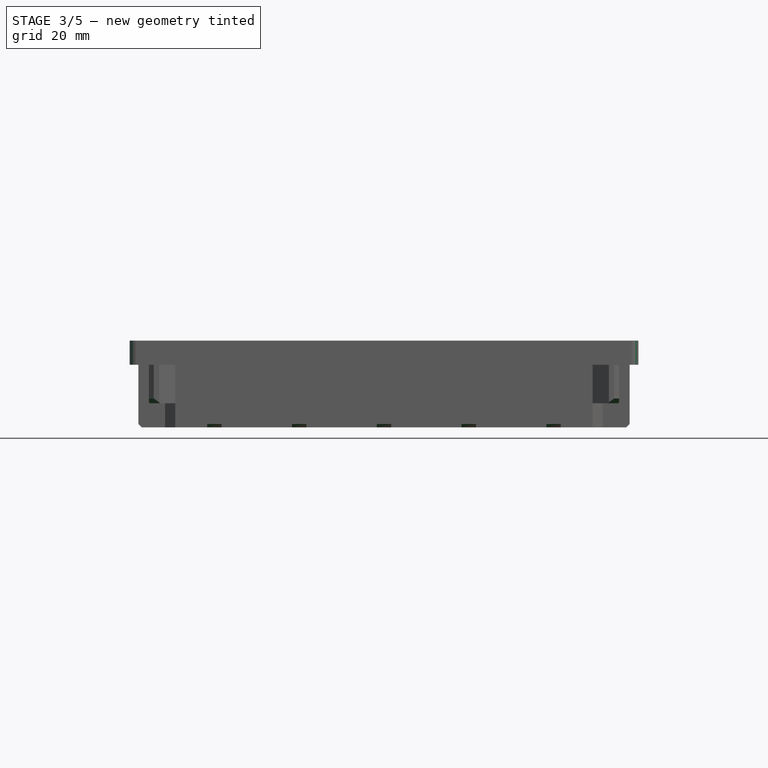
[diagram: stage 3 of 5 — front view after this stage's code; geometry added in this stage tinted green]
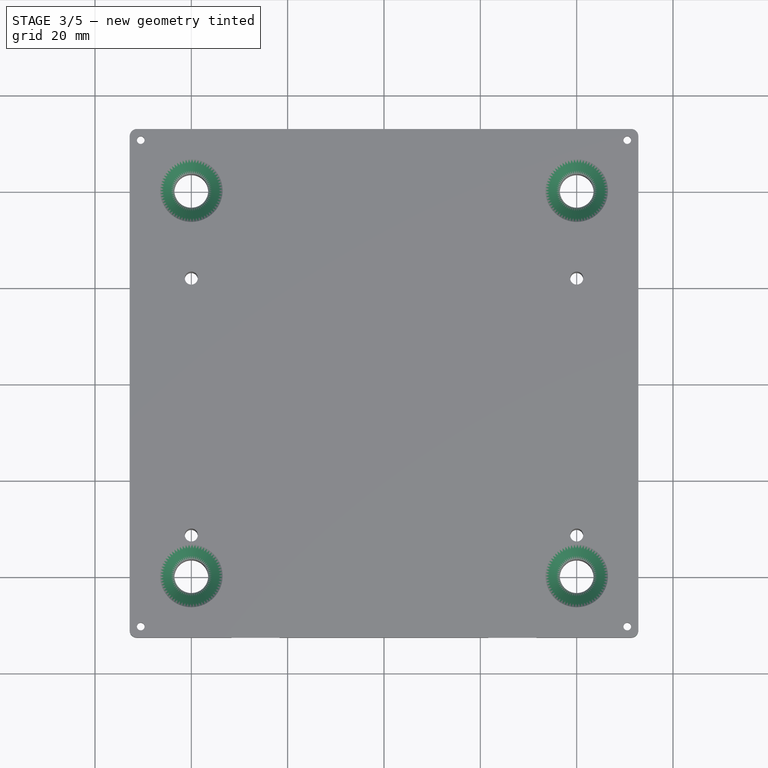
[diagram: stage 3 of 5 — top view after this stage's code; geometry added in this stage tinted green]
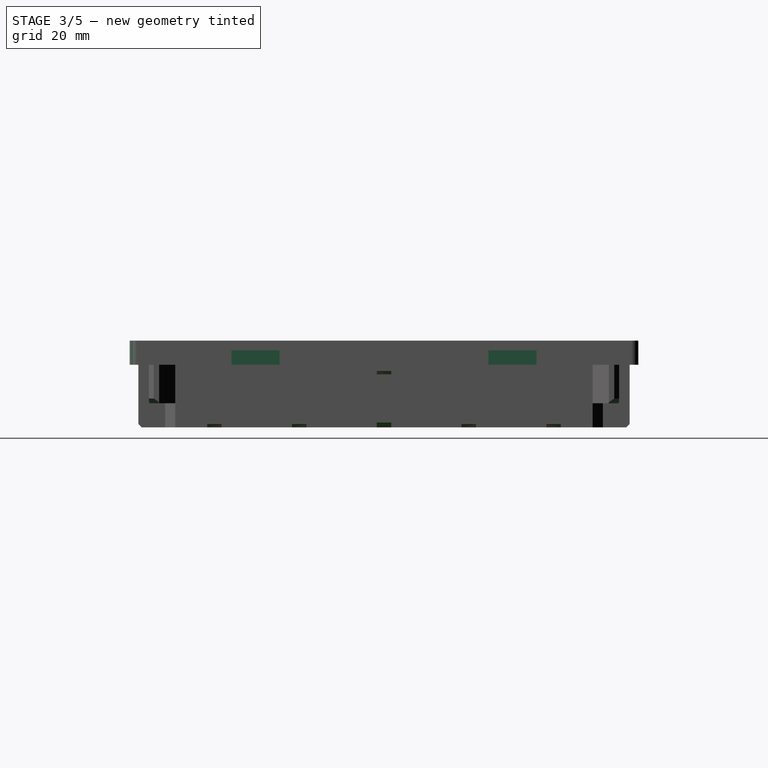
[diagram: stage 3 of 5 — right view after this stage's code; geometry added in this stage tinted green]
FEATURE [PartDesign::PolarPattern] PolarPattern
  Angle = 360
  Axis = -> Z_Axis021
  BaseFeature = -> Pocket010
  Occurrences = 4
  Originals = -> [Pocket010]
FEATURE [PartDesign::Chamfer] Chamfer
  Base = -> PolarPattern [Edge372,Edge356,Edge340,Edge331,Edge315,Edge271,Edge255,Edge459,Edge236,Edge248,Edge264,Edge287,Edge308,Edge324,Edge3,Edge454,Edge349,Edge365,Edge388,Edge409,Edge425,Edge444,Edge456,Edge432,Edge416,Edge394,Edge293]
  BaseFeature = -> PolarPattern
  Size = 1
FEATURE [PartDesign::Fillet] Fillet
  Base = -> Chamfer [Edge305,Edge287,Edge272,Edge274]
  BaseFeature = -> Chamfer
  Radius = 1.5
FEATURE [PartDesign::Body] Body  label="routing_eject"
  Group = -> [Sketch101,Pad047,Sketch102,Pad048,Chamfer001,Chamfer002]
  Origin = -> Origin
  Placement = pos=(0,0,15) rot=(0,0,1;0rad)
  Tip = -> Chamfer002
FEATURE [PartDesign::Chamfer] Chamfer003
  Base = -> Fillet [Edge522,Edge526,Edge519,Edge523]
  BaseFeature = -> Fillet
  Size = 3
FEATURE [Sketcher::SketchObject] Sketch103
  MapMode = 5
  Placement = pos=(0,0,-13) rot=(1,0,0;3.14159rad)
  Support = -> [Chamfer003]
  expr: Constraints[27] = 102.6 - 0.6
  sketch-geometry (10):
    g0: LineSegment StartX=-51 StartY=51 StartZ=0 EndX=-51 EndY=-51 EndZ=0
    g1: LineSegment StartX=-51 StartY=-51 StartZ=0 EndX=51 EndY=-51 EndZ=0
    g2: LineSegment StartX=51 StartY=-51 StartZ=0 EndX=51 EndY=51 EndZ=0
    g3: LineSegment StartX=51 StartY=51 StartZ=0 EndX=-51 EndY=51 EndZ=0
    g4: Circle [constr] CenterX=0 CenterY=0 CenterZ=0 NormalX=0 NormalY=0 NormalZ=1 AngleXU=0 Radius=72.1249
    g5: LineSegment StartX=-75 StartY=75 StartZ=0 EndX=-75 EndY=-75 EndZ=0
    g6: LineSegment StartX=-75 StartY=-75 StartZ=0 EndX=75 EndY=-75 EndZ=0
    g7: LineSegment StartX=75 StartY=-75 StartZ=0 EndX=75 EndY=75 EndZ=0
    g8: LineSegment StartX=75 StartY=75 StartZ=0 EndX=-75 EndY=75 EndZ=0
    g9: Circle [constr] CenterX=0 CenterY=0 CenterZ=0 NormalX=0 NormalY=0 NormalZ=1 AngleXU=0 Radius=106.066
  constraints (28):
    c: Coincident(g0,g1)
    c: Coincident(g1,g2)
    c: Coincident(g2,g3)
    c: Coincident(g3,g0)
    c: Equal(g0,g1)
    c: Equal(g0,g2)
    c: Equal(g0,g3)
    c: PointOnObject(g0,g4)
    c: PointOnObject(g1,g4)
    c: PointOnObject(g2,g4)
    c: PointOnObject(g3,g4)
    c: Coincident(g4,g-1)
    c: Horizontal(g3)
    c: Coincident(g5,g6)
    c: Coincident(g6,g7)
    c: Coincident(g7,g8)
    c: Coincident(g8,g5)
    c: Equal(g5,g6)
    c: Equal(g5,g7)
    c: Equal(g5,g8)
    c: PointOnObject(g5,g9)
    c: PointOnObject(g6,g9)
    c: PointOnObject(g7,g9)
    c: PointOnObject(g8,g9)
    c: Coincident(g9,g-1)
    c: Horizontal(g8)
    c: DistanceX(g8,g8) = 150
    c: DistanceX(g3,g3) = 102
FEATURE [PartDesign::Pocket] Pocket011
  BaseFeature = -> Chamfer003
  Length = 13
  Length2 = 100
  Profile = -> Sketch103
  Refine = true
  Type = 0
FEATURE [PartDesign::Body] Body014  label="routing_jig"
  Group = -> [Sketch087,Pad044,PolarPattern015,Sketch,Pocket,Sketch089,Pad045,Sketch090,Sketch092,Sketch094,Sketch095,Pad046,Pocket003,Sketch096,Sketch097,Pocket007,Sketch098,Pocket008,Sketch099,Pocket009,Sketch100,Pocket010,PolarPattern,Chamfer,Fillet,Chamfer003,Sketch103,Pocket011]
  Origin = -> Origin021
  Tip = -> Pocket011
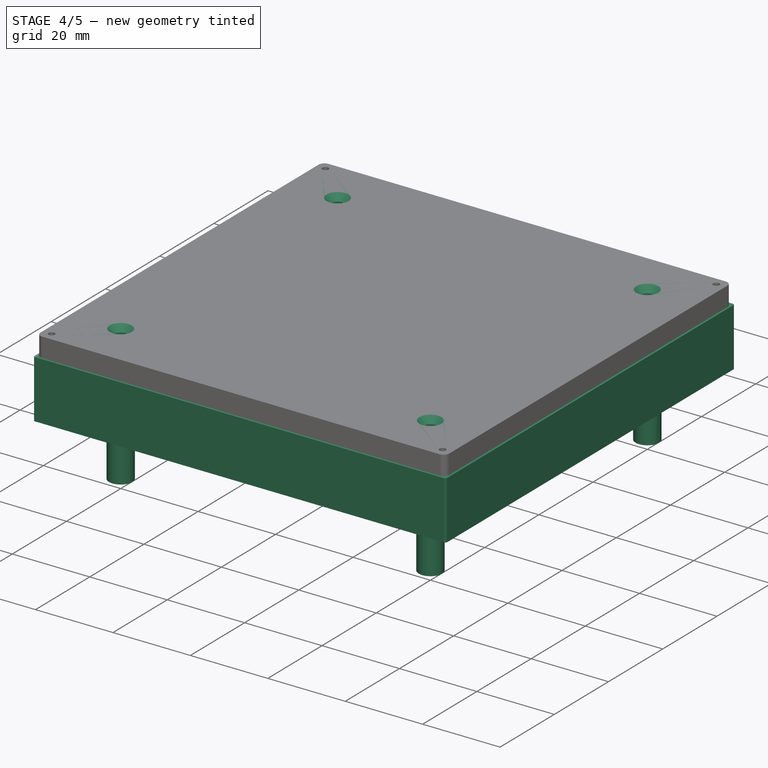
[diagram: stage 4 of 5 — iso view after this stage's code; geometry added in this stage tinted green]
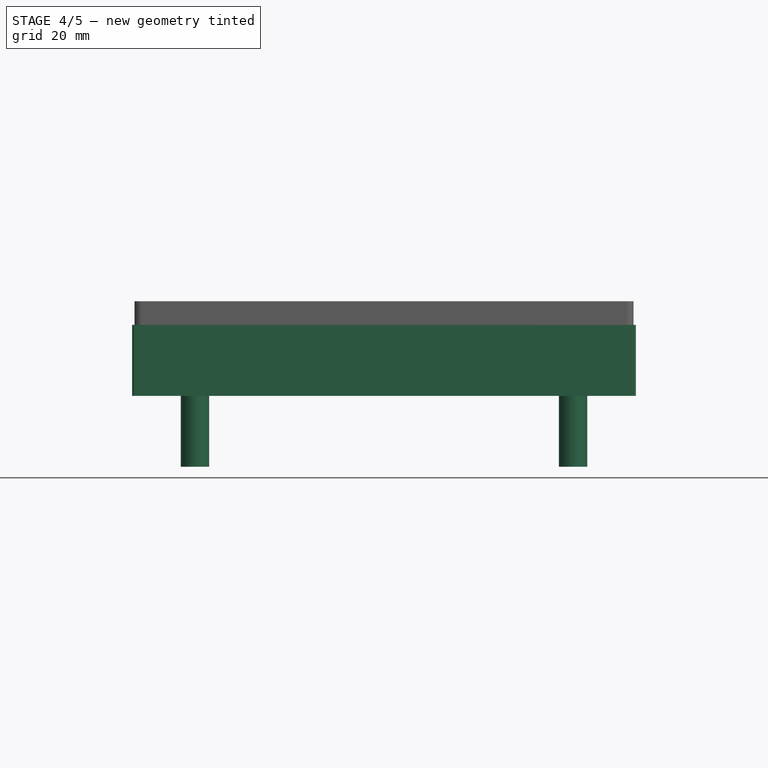
[diagram: stage 4 of 5 — front view after this stage's code; geometry added in this stage tinted green]
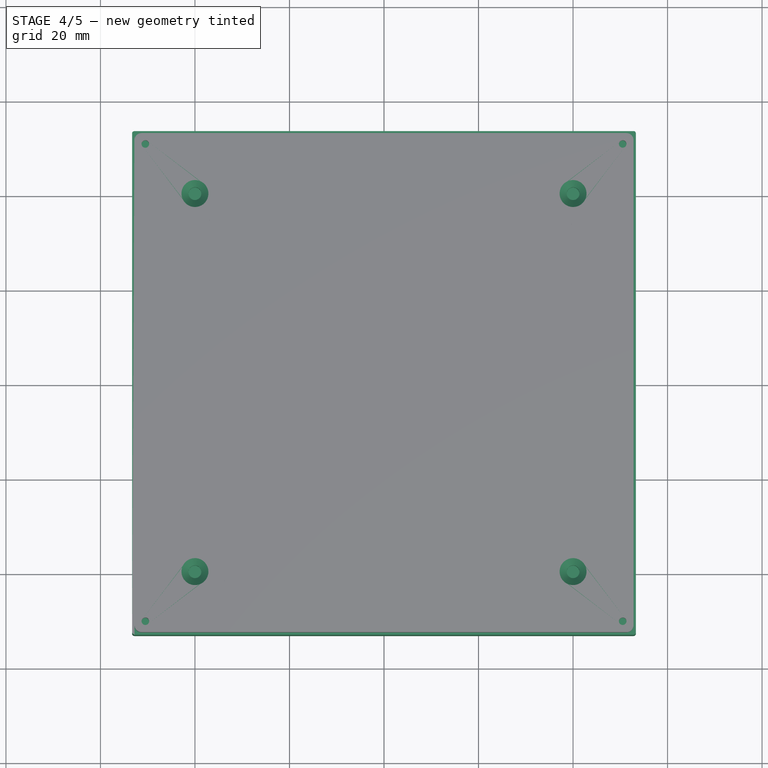
[diagram: stage 4 of 5 — top view after this stage's code; geometry added in this stage tinted green]
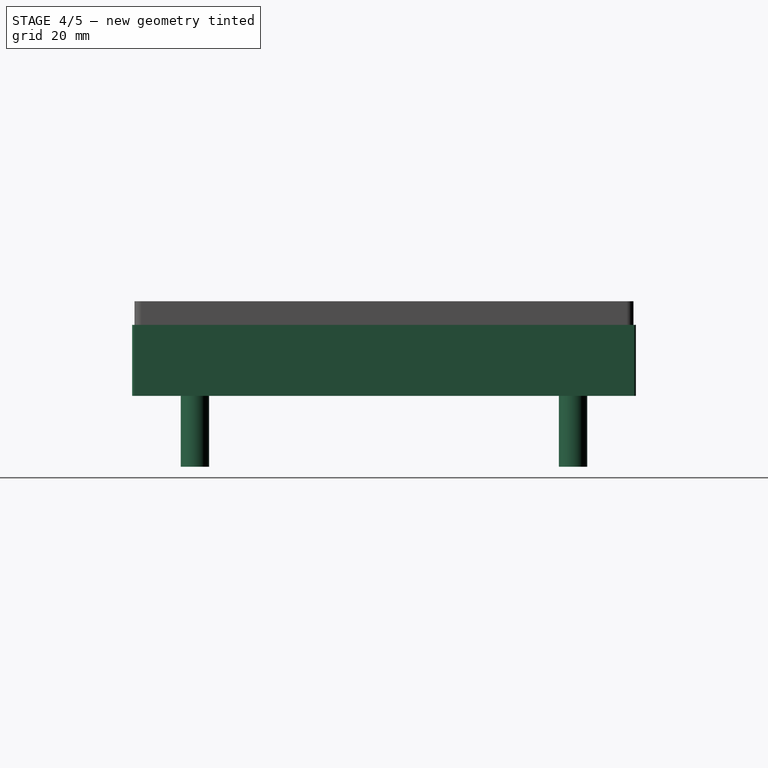
[diagram: stage 4 of 5 — right view after this stage's code; geometry added in this stage tinted green]
FEATURE [Spreadsheet::Sheet] Spreadsheet  label="Generic"
  cells = A1=Dimension; B1(dimension)==106.6mm; A2=Corner Radius; B2(cornerRadius)=2; C2=(mm); A3=Screw Diameter; B3(screwDiameter)=2.2; C3=(mm); A4=Screw Diameter Plastic; B4(screwDiameterPlastic)=2.8; C4=(mm); A5=Screw Distance; B5(screwDistance)=101; C5=(mm)
FEATURE [Spreadsheet::Sheet] Spreadsheet001  label="Unibody"
  cells = A1=Height; B1(height)=15; C1=(mm); A5=Rib Length; B5(ribLength)=5; A6=Rib Width; B6(ribWidth)=1.5; A7=Rib Height; B7(ribHeight)=2.8; A8=Rib Dist 1; B8(ribDist1)=19.05; A9=Rib Dist 2; B9(ribDist2)=34.29; C9==1.35in; A12=PCB Dimensions; B12(pcbDimensions)=100; A13=PCB Thickness; B13(pcbThickness)=1.6; A16=Feet Diameter; B16(feetDiameter)=10; A17=Feet Distance; B17(feetDistance)=85; A18=Feet Depth; B18(feetDepth)=0.5; A19=Feet Thickness; B19(feetThickness)=1
FEATURE [Sketcher::SketchObject] Sketch008
  MapMode = 5
  Support = -> [XY_Plane002]
  expr: Constraints[20] = Generic.dimension
  sketch-geometry (9):
    g0: LineSegment StartX=-53.3 StartY=52.8 StartZ=0 EndX=-53.3 EndY=-52.8 EndZ=0
    g1: LineSegment StartX=-52.8 StartY=-53.3 StartZ=0 EndX=52.8 EndY=-53.3 EndZ=0
    g2: LineSegment StartX=53.3 StartY=-52.8 StartZ=0 EndX=53.3 EndY=52.8 EndZ=0
    g3: LineSegment StartX=52.8 StartY=53.3 StartZ=0 EndX=-52.8 EndY=53.3 EndZ=0
    g4: ArcOfCircle CenterX=-52.8 CenterY=52.8 CenterZ=0 NormalX=0 NormalY=0 NormalZ=1 AngleXU=0 Radius=0.5 StartAngle=1.5708 EndAngle=3.14159
    g5: ArcOfCircle CenterX=52.8 CenterY=52.8 CenterZ=0 NormalX=0 NormalY=0 NormalZ=1 AngleXU=0 Radius=0.5 StartAngle=-1.004e-13 EndAngle=1.5708
    g6: ArcOfCircle CenterX=52.8 CenterY=-52.8 CenterZ=0 NormalX=0 NormalY=0 NormalZ=1 AngleXU=0 Radius=0.5 StartAngle=4.71239 EndAngle=6.28319
    g7: ArcOfCircle CenterX=-52.8 CenterY=-52.8 CenterZ=0 NormalX=0 NormalY=0 NormalZ=1 AngleXU=0 Radius=0.5 StartAngle=3.14159 EndAngle=4.71239
    g8: Circle [constr] CenterX=0 CenterY=0 CenterZ=0 NormalX=0 NormalY=0 NormalZ=1 AngleXU=0 Radius=74.6705
  constraints (22):
    c: Equal(g0,g1)
    c: Equal(g0,g2)
    c: Equal(g0,g3)
    c: Horizontal(g3)
    c: Tangent(g0,g4) = -1.5708
    c: Tangent(g3,g4) = -1.5708
    c: Tangent(g3,g5) = -1.5708
    c: Tangent(g2,g5) = -1.5708
    c: Tangent(g2,g6) = -1.5708
    c: Tangent(g1,g6) = -1.5708
    c: Tangent(g1,g7) = -1.5708
    c: Tangent(g0,g7) = -1.5708
    c: Coincident(g8,g-1)
    c: PointOnObject(g4,g8)
    c: PointOnObject(g5,g8)
    c: PointOnObject(g6,g8)
    c: PointOnObject(g7,g8)
    c: Vertical(g0)
    c: Horizontal(g1)
    c: Vertical(g2)
    c: DistanceX(g0,g2) = 106.6
    c: DistanceX(g0,g4) = 0.5
FEATURE [PartDesign::Pad] Pad002  label="Base"
  Length = 15
  Length2 = 100
  Profile = -> Sketch008
  Reversed = true
  Type = 0
  expr: Length = Unibody.height
FEATURE [Sketcher::SketchObject] Sketch101
  MapMode = 5
  Support = -> [XY_Plane]
  sketch-geometry (29):
    g0: LineSegment StartX=-52.8 StartY=51.3 StartZ=0 EndX=-52.8 EndY=-51.3 EndZ=0
    g1: LineSegment StartX=-51.3 StartY=-52.8 StartZ=0 EndX=51.3 EndY=-52.8 EndZ=0
    g2: LineSegment StartX=52.8 StartY=-51.3 StartZ=0 EndX=52.8 EndY=51.3 EndZ=0
    g3: LineSegment StartX=51.3 StartY=52.8 StartZ=0 EndX=-51.3 EndY=52.8 EndZ=0
    g4: ArcOfCircle CenterX=-51.3 CenterY=51.3 CenterZ=0 NormalX=0 NormalY=0 NormalZ=1 AngleXU=0 Radius=1.5 StartAngle=1.5708 EndAngle=3.14159
    g5: ArcOfCircle CenterX=51.3 CenterY=51.3 CenterZ=0 NormalX=0 NormalY=0 NormalZ=1 AngleXU=0 Radius=1.5 StartAngle=1e-15 EndAngle=1.5708
    g6: ArcOfCircle CenterX=51.3 CenterY=-51.3 CenterZ=0 NormalX=0 NormalY=0 NormalZ=1 AngleXU=0 Radius=1.5 StartAngle=4.71239 EndAngle=6.28319
    g7: ArcOfCircle CenterX=-51.3 CenterY=-51.3 CenterZ=0 NormalX=0 NormalY=0 NormalZ=1 AngleXU=0 Radius=1.5 StartAngle=3.14159 EndAngle=4.71239
    g8: LineSegment [constr] StartX=-51.3 StartY=51.3 StartZ=0 EndX=0 EndY=0 EndZ=0
    g9: LineSegment [constr] StartX=0 StartY=0 StartZ=0 EndX=51.3 EndY=51.3 EndZ=0
    g10: LineSegment [constr] StartX=51.3 StartY=-51.3 StartZ=0 EndX=0 EndY=0 EndZ=0
    g11: LineSegment [constr] StartX=-50.5 StartY=50.5 StartZ=0 EndX=-50.5 EndY=-50.5 EndZ=0
    g12: LineSegment [constr] StartX=-50.5 StartY=-50.5 StartZ=0 EndX=50.5 EndY=-50.5 EndZ=0
    g13: LineSegment [constr] StartX=50.5 StartY=-50.5 StartZ=0 EndX=50.5 EndY=50.5 EndZ=0
    g14: LineSegment [constr] StartX=50.5 StartY=50.5 StartZ=0 EndX=-50.5 EndY=50.5 EndZ=0
    g15: Circle [constr] CenterX=0 CenterY=0 CenterZ=0 NormalX=0 NormalY=0 NormalZ=1 AngleXU=0 Radius=71.4178
    g16: Circle CenterX=-50.5 CenterY=50.5 CenterZ=0 NormalX=0 NormalY=0 NormalZ=1 AngleXU=0 Radius=0.8
    g17: Circle CenterX=50.5 CenterY=50.5 CenterZ=0 NormalX=0 NormalY=0 NormalZ=1 AngleXU=0 Radius=0.8
    g18: Circle CenterX=50.5 CenterY=-50.5 CenterZ=0 NormalX=0 NormalY=0 NormalZ=1 AngleXU=0 Radius=0.8
    g19: Circle CenterX=-50.5 CenterY=-50.5 CenterZ=0 NormalX=0 NormalY=0 NormalZ=1 AngleXU=0 Radius=0.8
    g20: LineSegment [constr] StartX=-40.005 StartY=40.005 StartZ=0 EndX=-40.005 EndY=-40.005 EndZ=0
    g21: LineSegment [constr] StartX=-40.005 StartY=-40.005 StartZ=0 EndX=40.005 EndY=-40.005 EndZ=0
    g22: LineSegment [constr] StartX=40.005 StartY=-40.005 StartZ=0 EndX=40.005 EndY=40.005 EndZ=0
    g23: LineSegment [constr] StartX=40.005 StartY=40.005 StartZ=0 EndX=-40.005 EndY=40.005 EndZ=0
    g24: Circle [constr] CenterX=0 CenterY=0 CenterZ=0 NormalX=0 NormalY=0 NormalZ=1 AngleXU=0 Radius=56.5756
    g25: Circle CenterX=-40.005 CenterY=40.005 CenterZ=0 NormalX=0 NormalY=0 NormalZ=1 AngleXU=0 Radius=1.35
    g26: Circle CenterX=40.005 CenterY=40.005 CenterZ=0 NormalX=0 NormalY=0 NormalZ=1 AngleXU=0 Radius=1.35
    g27: Circle CenterX=40.005 CenterY=-40.005 CenterZ=0 NormalX=0 NormalY=0 NormalZ=1 AngleXU=0 Radius=1.35
    g28: Circle CenterX=-40.005 CenterY=-40.005 CenterZ=0 NormalX=0 NormalY=0 NormalZ=1 AngleXU=0 Radius=1.35
  constraints (70):
    c: Equal(g0,g1)
    c: Equal(g0,g2)
    c: Equal(g0,g3)
    c: Horizontal(g3)
    c: Tangent(g0,g4) = -1.5708
    c: Tangent(g3,g4) = -1.5708
    c: Tangent(g3,g5) = -1.5708
    c: Tangent(g2,g5) = -1.5708
    c: Tangent(g2,g6) = -1.5708
    c: Tangent(g1,g6) = -1.5708
    c: Tangent(g1,g7) = -1.5708
    c: Tangent(g0,g7) = -1.5708
    c: Vertical(g0)
    c: Vertical(g2)
    c: Horizontal(g1)
    c: Radius(g5) = 1.5
    c: Equal(g4,g5)
    c: Coincident(g8,g4)
    c: Coincident(g8,g-1)
    c: Coincident(g8,g9)
    c: Coincident(g9,g5)
    c: Coincident(g10,g6)
    c: Coincident(g10,g-1)
    c: Equal(g9,g10)
    c: Equal(g10,g8)
    c: DistanceX(g0,g2) = 105.6
    c: Coincident(g11,g12)
    c: Coincident(g12,g13)
    c: Coincident(g13,g14)
    c: Coincident(g14,g11)
    c: Equal(g11,g12)
    c: Equal(g11,g13)
    c: Equal(g11,g14)
    c: PointOnObject(g11,g15)
    c: PointOnObject(g12,g15)
    c: PointOnObject(g13,g15)
    c: PointOnObject(g14,g15)
    c: Coincident(g15,g-1)
    c: Horizontal(g14)
    c: Coincident(g16,g11)
    c: Coincident(g17,g13)
    c: Coincident(g18,g12)
    c: Coincident(g19,g11)
    c: Radius(g19) = 0.8
    c: Equal(g19,g18)
    c: Equal(g19,g17)
    c: Equal(g19,g16)
    c: DistanceX(g14,g14) = 101
    c: Coincident(g20,g21)
    c: Coincident(g21,g22)
    c: Coincident(g22,g23)
    c: Coincident(g23,g20)
    c: Equal(g20,g21)
    c: Equal(g20,g22)
    c: Equal(g20,g23)
    c: PointOnObject(g20,g24)
    c: PointOnObject(g21,g24)
    c: PointOnObject(g22,g24)
    c: PointOnObject(g23,g24)
    c: Coincident(g24,g-1)
    c: Coincident(g25,g20)
    c: Coincident(g26,g22)
    c: Coincident(g27,g21)
    c: Coincident(g28,g20)
    c: Diameter(g28) = 2.7
    c: Equal(g28,g25)
    c: Equal(g28,g26)
    c: Equal(g28,g27)
    c: Horizontal(g23)
    c: DistanceX(g23,g23) = 80.01
FEATURE [PartDesign::Pad] Pad047
  Length = 5
  Length2 = 100
  Profile = -> Sketch101
  Type = 0
FEATURE [Sketcher::SketchObject] Sketch102
  ExternalGeometry = -> [Pad047]
  MapMode = 5
  Placement = pos=(0,0,0) rot=(1,0,0;3.14159rad)
  Support = -> [Pad047]
  sketch-geometry (8):
    g0: Circle CenterX=-40.005 CenterY=40.005 CenterZ=0 NormalX=0 NormalY=0 NormalZ=1 AngleXU=0 Radius=3
    g1: Circle CenterX=-40.005 CenterY=40.005 CenterZ=0 NormalX=0 NormalY=0 NormalZ=1 AngleXU=0 Radius=1.35
    g2: Circle CenterX=40.005 CenterY=40.005 CenterZ=0 NormalX=0 NormalY=0 NormalZ=1 AngleXU=0 Radius=1.35
    g3: Circle CenterX=40.005 CenterY=40.005 CenterZ=0 NormalX=0 NormalY=0 NormalZ=1 AngleXU=0 Radius=3
    g4: Circle CenterX=40.005 CenterY=-40.005 CenterZ=0 NormalX=0 NormalY=0 NormalZ=1 AngleXU=0 Radius=3
    g5: Circle CenterX=40.005 CenterY=-40.005 CenterZ=0 NormalX=0 NormalY=0 NormalZ=1 AngleXU=0 Radius=1.35
    g6: Circle CenterX=-40.005 CenterY=-40.005 CenterZ=0 NormalX=0 NormalY=0 NormalZ=1 AngleXU=0 Radius=1.35
    g7: Circle CenterX=-40.005 CenterY=-40.005 CenterZ=0 NormalX=0 NormalY=0 NormalZ=1 AngleXU=0 Radius=3
  constraints (16):
    c: Coincident(g0,g-3)
    c: Coincident(g1,g0)
    c: Coincident(g2,g-4)
    c: Coincident(g3,g2)
    c: Coincident(g4,g-5)
    c: Coincident(g5,g4)
    c: Coincident(g6,g-6)
    c: Coincident(g7,g6)
    c: Diameter(g7) = 6
    c: Equal(g7,g4)
    c: Equal(g7,g3)
    c: Equal(g7,g0)
    c: Diameter(g2) = 2.7
    c: Equal(g2,g5)
    c: Equal(g2,g6)
    c: Equal(g2,g1)
FEATURE [PartDesign::Pad] Pad048
  BaseFeature = -> Pad047
  Length = 30
  Length2 = 100
  Profile = -> Sketch102
  Type = 0
FEATURE [PartDesign::Chamfer] Chamfer001
  Base = -> Pad048 [Edge30,Edge29,Edge32,Edge31]
  BaseFeature = -> Pad048
  Size = 1.5
FEATURE [PartDesign::Chamfer] Chamfer002
  Base = -> Chamfer001 [Edge52,Edge54,Edge51,Edge53]
  BaseFeature = -> Chamfer001
  Size = 3
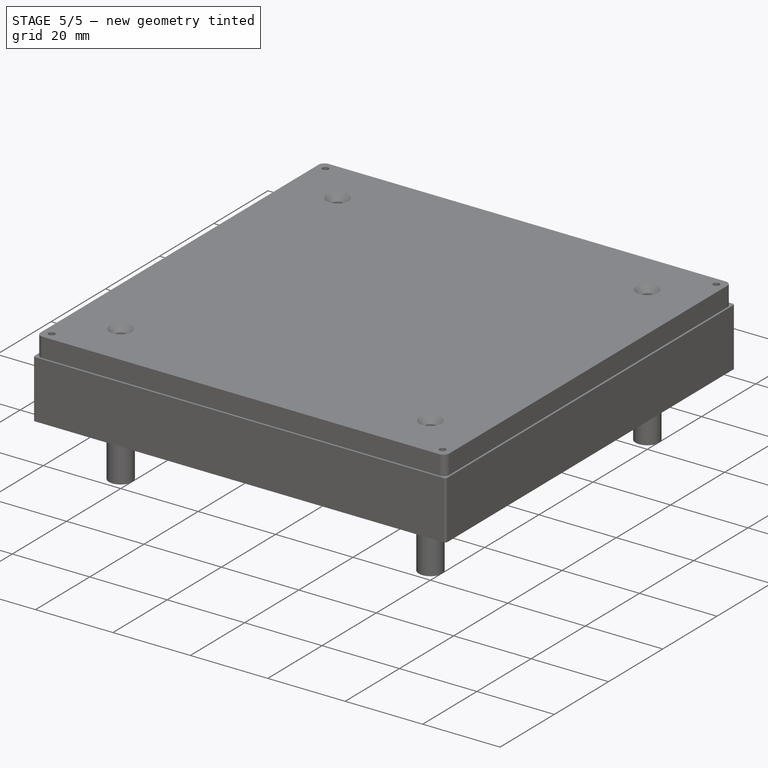
[diagram: stage 5 of 5 — iso view after this stage's code; geometry added in this stage tinted green]
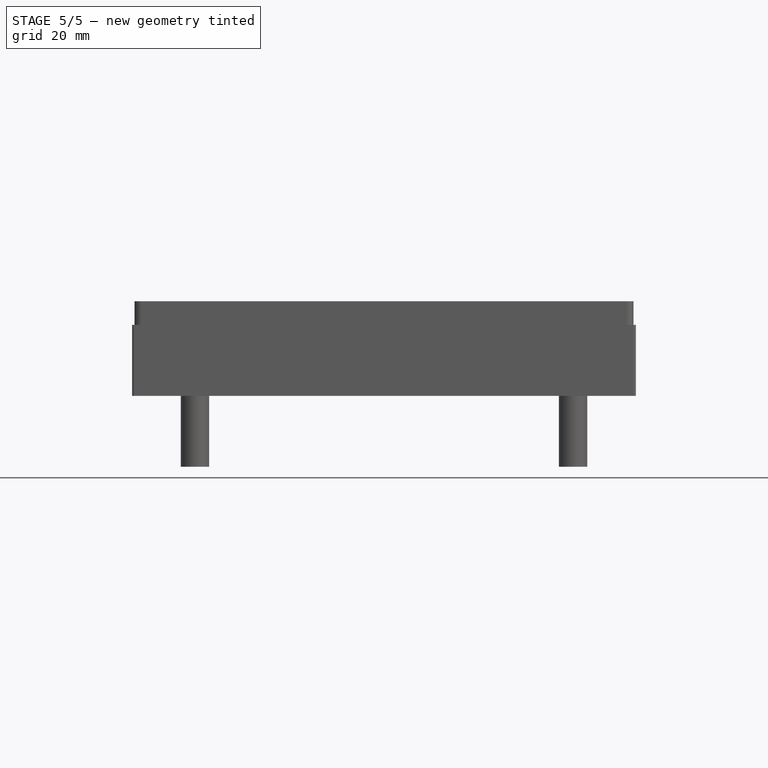
[diagram: stage 5 of 5 — front view after this stage's code; geometry added in this stage tinted green]
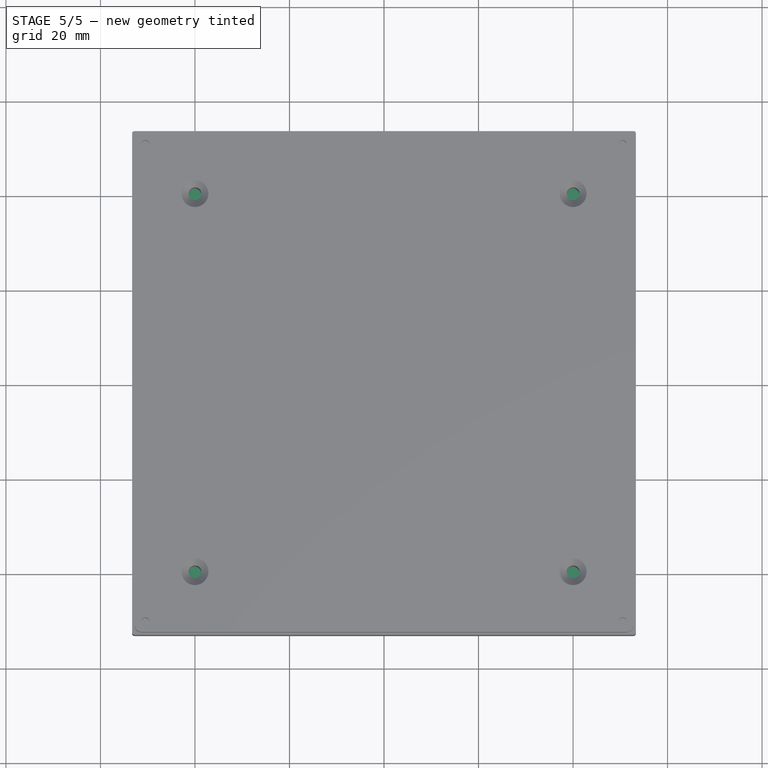
[diagram: stage 5 of 5 — top view after this stage's code; geometry added in this stage tinted green]
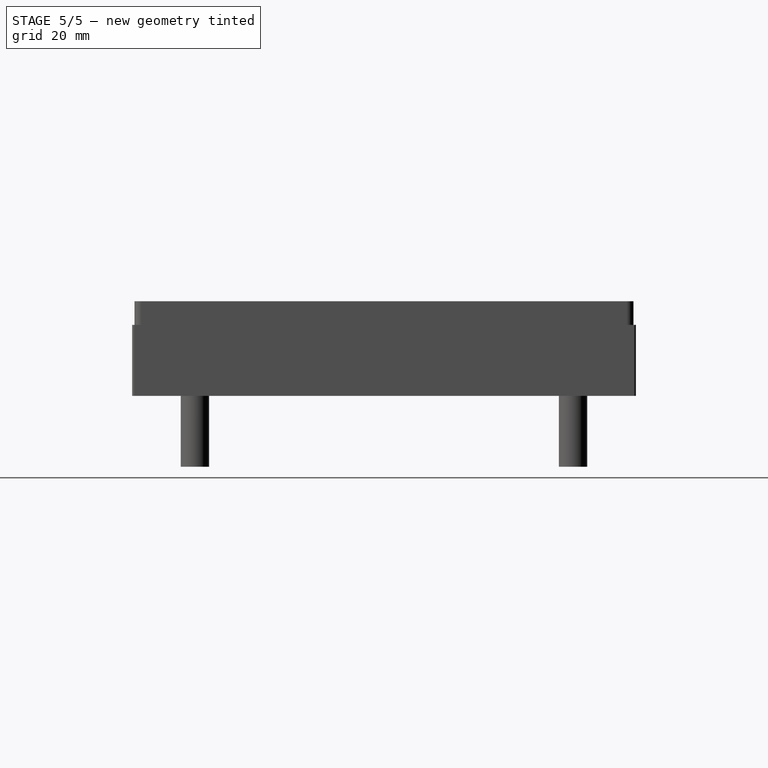
[diagram: stage 5 of 5 — right view after this stage's code; geometry added in this stage tinted green]
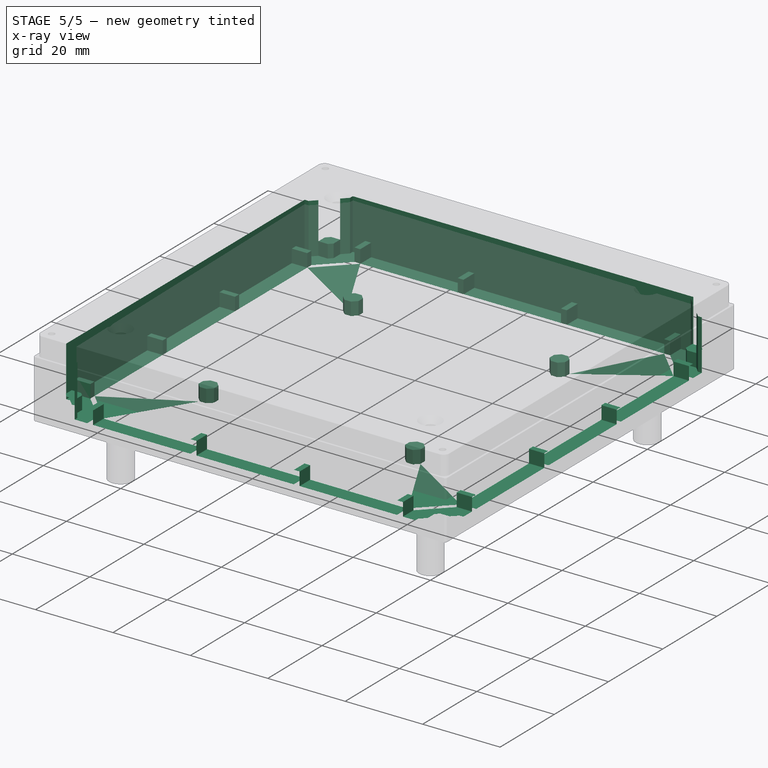
[diagram: stage 5 of 5 — x-ray composite at the iso view; earlier geometry ghosted, this stage's added geometry solid]
FEATURE [Sketcher::SketchObject] Sketch017
  MapMode = 5
  Support = -> [Pad002]
  sketch-geometry (15):
    g0: LineSegment StartX=0 StartY=0 StartZ=0 EndX=0 EndY=51.3 EndZ=0
    g1: LineSegment StartX=0 StartY=0 StartZ=0 EndX=-51.3 EndY=0 EndZ=0
    g2: LineSegment StartX=0 StartY=51.3 StartZ=0 EndX=-44 EndY=51.3 EndZ=0
    g3: LineSegment StartX=-51.3 StartY=0 StartZ=0 EndX=-51.3 EndY=44 EndZ=0
    g4: LineSegment StartX=-51.3 StartY=44 StartZ=0 EndX=-50.3 EndY=44 EndZ=0
    g5: LineSegment StartX=-44 StartY=51.3 StartZ=0 EndX=-44 EndY=50.3 EndZ=0
    g6: LineSegment StartX=-44 StartY=50.3 StartZ=0 EndX=-45.5 EndY=48.8 EndZ=0
    g7: LineSegment StartX=-50.3 StartY=44 StartZ=0 EndX=-48.8 EndY=45.5 EndZ=0
    g8: LineSegment StartX=-48.8 StartY=45.5 StartZ=0 EndX=-48.8 EndY=47.8 EndZ=0
    g9: LineSegment StartX=-48.8 StartY=47.8 StartZ=0 EndX=-47.8 EndY=48.8 EndZ=0
    g10: LineSegment StartX=-47.8 StartY=48.8 StartZ=0 EndX=-45.5 EndY=48.8 EndZ=0
    g11: LineSegment [constr] StartX=-50.3 StartY=44 StartZ=0 EndX=-48.8 EndY=44 EndZ=0
    g12: LineSegment [constr] StartX=-45.5 StartY=48.8 StartZ=0 EndX=-44 EndY=48.8 EndZ=0
    g13: LineSegment [constr] StartX=-44 StartY=50.3 StartZ=0 EndX=-44 EndY=48.8 EndZ=0
    g14: LineSegment [constr] StartX=-48.8 StartY=45.5 StartZ=0 EndX=-48.8 EndY=44 EndZ=0
  constraints (42):
    c: Coincident(g0,g-1)
    c: PointOnObject(g0,g-2)
    c: Coincident(g1,g0)
    c: PointOnObject(g1,g-1)
    c: Coincident(g2,g0)
    c: Horizontal(g2)
    c: Coincident(g3,g1)
    c: Vertical(g3)
    c: DistanceY(g0,g0) = 51.3
    c: Equal(g0,g1)
    c: Coincident(g4,g3)
    c: Horizontal(g4)
    c: Coincident(g5,g2)
    c: Vertical(g5)
    c: Equal(g2,g3)
    c: DistanceY(g5,g5) = 1
    c: Equal(g5,g4)
    c: DistanceX(g2,g2) = 44
    c: Coincident(g6,g5)
    c: Coincident(g7,g4)
    c: Coincident(g8,g7)
    c: Vertical(g8)
    c: Coincident(g9,g8)
    c: Coincident(g10,g9)
    c: Coincident(g10,g6)
    c: Horizontal(g10)
    c: Equal(g10,g8)
    c: Coincident(g11,g4)
    c: Horizontal(g11)
    c: Coincident(g12,g6)
    c: Horizontal(g12)
    c: Coincident(g13,g5)
    c: Coincident(g13,g12)
    c: Vertical(g13)
    c: Coincident(g14,g7)
    c: Coincident(g14,g11)
    c: Vertical(g14)
    c: Equal(g13,g12)
    c: Equal(g12,g14)
    c: Equal(g14,g11)
    c: DistanceX(g11,g11) = 1.5
    c: DistanceY(g8,g9) = 1
FEATURE [PartDesign::Pocket] Pocket002
  Length = 13
  Length2 = 100
  Profile = -> Sketch017
  Refine = true
  Type = 0
FEATURE [PartDesign::PolarPattern] PolarPattern002
  Angle = 360
  Axis = -> Sketch017 [N_Axis]
  BaseFeature = -> Pocket002
  Occurrences = 4
  Originals = -> [Pocket002]
  Refine = true
FEATURE [Sketcher::SketchObject] Sketch018
  MapMode = 5
  Placement = pos=(0,0,-13) rot=(0,0,1;0rad)
  Support = -> [PolarPattern002]
  sketch-geometry (48):
    g0: LineSegment StartX=-40.755 StartY=47.3 StartZ=0 EndX=-39.255 EndY=47.3 EndZ=0
    g1: LineSegment StartX=-39.255 StartY=47.3 StartZ=0 EndX=-39.255 EndY=51.3 EndZ=0
    g2: LineSegment StartX=-39.255 StartY=51.3 StartZ=0 EndX=-40.755 EndY=51.3 EndZ=0
    g3: LineSegment StartX=-40.755 StartY=51.3 StartZ=0 EndX=-40.755 EndY=47.3 EndZ=0
    g4: LineSegment StartX=-14.085 StartY=47.3 StartZ=0 EndX=-12.585 EndY=47.3 EndZ=0
    g5: LineSegment StartX=-12.585 StartY=47.3 StartZ=0 EndX=-12.585 EndY=51.3 EndZ=0
    g6: LineSegment StartX=-12.585 StartY=51.3 StartZ=0 EndX=-14.085 EndY=51.3 EndZ=0
    g7: LineSegment StartX=-14.085 StartY=51.3 StartZ=0 EndX=-14.085 EndY=47.3 EndZ=0
    g8: LineSegment StartX=12.585 StartY=51.3 StartZ=0 EndX=14.085 EndY=51.3 EndZ=0
    g9: LineSegment StartX=14.085 StartY=51.3 StartZ=0 EndX=14.085 EndY=47.3 EndZ=0
    g10: LineSegment StartX=14.085 StartY=47.3 StartZ=0 EndX=12.585 EndY=47.3 EndZ=0
    g11: LineSegment StartX=12.585 StartY=47.3 StartZ=0 EndX=12.585 EndY=51.3 EndZ=0
    g12: LineSegment StartX=39.255 StartY=51.3 StartZ=0 EndX=40.755 EndY=51.3 EndZ=0
    g13: LineSegment StartX=40.755 StartY=51.3 StartZ=0 EndX=40.755 EndY=47.3 EndZ=0
    g14: LineSegment StartX=40.755 StartY=47.3 StartZ=0 EndX=39.255 EndY=47.3 EndZ=0
    g15: LineSegment StartX=39.255 StartY=47.3 StartZ=0 EndX=39.255 EndY=51.3 EndZ=0
    g16: LineSegment [constr] StartX=-40.755 StartY=47.3 StartZ=0 EndX=-40.005 EndY=0 EndZ=0
    g17: LineSegment [constr] StartX=-40.005 StartY=0 StartZ=0 EndX=-39.255 EndY=47.3 EndZ=0
    g18: LineSegment [constr] StartX=-14.085 StartY=47.3 StartZ=0 EndX=-13.335 EndY=0 EndZ=0
    g19: LineSegment [constr] StartX=-12.585 StartY=47.3 StartZ=0 EndX=-13.335 EndY=0 EndZ=0
    g20: LineSegment [constr] StartX=12.585 StartY=47.3 StartZ=0 EndX=13.335 EndY=0 EndZ=0
    g21: LineSegment [constr] StartX=14.085 StartY=47.3 StartZ=0 EndX=13.335 EndY=0 EndZ=0
    g22: LineSegment [constr] StartX=39.255 StartY=47.3 StartZ=0 EndX=40.005 EndY=0 EndZ=0
    g23: LineSegment [constr] StartX=40.005 StartY=0 StartZ=0 EndX=40.755 EndY=47.3 EndZ=0
    g24: LineSegment [constr] StartX=-13.335 StartY=0 StartZ=0 EndX=-26.67 EndY=0 EndZ=0
    g25: LineSegment [constr] StartX=-26.67 StartY=0 StartZ=0 EndX=-40.005 EndY=0 EndZ=0
    g26: LineSegment [constr] StartX=-13.335 StartY=0 StartZ=0 EndX=0 EndY=0 EndZ=0
    g27: LineSegment [constr] StartX=0 StartY=0 StartZ=0 EndX=13.335 EndY=0 EndZ=0
    g28: LineSegment [constr] StartX=13.335 StartY=0 StartZ=0 EndX=26.67 EndY=0 EndZ=0
    g29: LineSegment [constr] StartX=26.67 StartY=0 StartZ=0 EndX=40.005 EndY=0 EndZ=0
    g30: LineSegment StartX=48.8 StartY=48.8 StartZ=0 EndX=45.5 EndY=48.8 EndZ=0
    g31: LineSegment StartX=48.8 StartY=45.5 StartZ=0 EndX=48.8 EndY=48.8 EndZ=0
    g32: LineSegment [constr] StartX=0 StartY=0 StartZ=0 EndX=45.5 EndY=48.8 EndZ=0
    g33: LineSegment [constr] StartX=48.8 StartY=45.5 StartZ=0 EndX=0 EndY=0 EndZ=0
    g34: Circle [constr] CenterX=47 CenterY=47 CenterZ=0 NormalX=0 NormalY=0 NormalZ=1 AngleXU=0 Radius=0.7
    g35: LineSegment StartX=45.5 StartY=46.3787 StartZ=0 EndX=46.3787 EndY=45.5 EndZ=0
    g36: LineSegment StartX=46.3787 StartY=45.5 StartZ=0 EndX=47.6213 EndY=45.5 EndZ=0
    g37: LineSegment [constr] StartX=47.6213 StartY=45.5 StartZ=0 EndX=48.5 EndY=46.3787 EndZ=0
    g38: LineSegment [constr] StartX=48.5 StartY=46.3787 StartZ=0 EndX=48.5 EndY=47.6213 EndZ=0
    g39: LineSegment [constr] StartX=48.5 StartY=47.6213 StartZ=0 EndX=47.6213 EndY=48.5 EndZ=0
    g40: LineSegment [constr] StartX=47.6213 StartY=48.5 StartZ=0 EndX=46.3787 EndY=48.5 EndZ=0
    g41: LineSegment [constr] StartX=46.3787 StartY=48.5 StartZ=0 EndX=45.5 EndY=47.6213 EndZ=0
    g42: LineSegment StartX=45.5 StartY=47.6213 StartZ=0 EndX=45.5 EndY=46.3787 EndZ=0
    g43: Circle [constr] CenterX=47 CenterY=47 CenterZ=0 NormalX=0 NormalY=0 NormalZ=1 AngleXU=0 Radius=1.62359
    g44: LineSegment StartX=45.5 StartY=48.8 StartZ=0 EndX=45.5 EndY=47.6213 EndZ=0
    g45: LineSegment StartX=45.5 StartY=47.6213 StartZ=0 EndX=45.5 EndY=47.6213 EndZ=0
    g46: LineSegment StartX=48.8 StartY=45.5 StartZ=0 EndX=47.6213 EndY=45.5 EndZ=0
    g47: LineSegment StartX=47.6213 StartY=45.5 StartZ=0 EndX=47.6213 EndY=45.5 EndZ=0
  constraints (126):
    c: Coincident(g0,g1)
    c: Coincident(g1,g2)
    c: Coincident(g2,g3)
    c: Coincident(g3,g0)
    c: Horizontal(g0)
    c: Horizontal(g2)
    c: Vertical(g1)
    c: Vertical(g3)
    c: Coincident(g4,g5)
    c: Coincident(g5,g6)
    c: Coincident(g6,g7)
    c: Coincident(g7,g4)
    c: Horizontal(g4)
    c: Horizontal(g6)
    c: Vertical(g5)
    c: Vertical(g7)
    c: Coincident(g8,g9)
    c: Coincident(g9,g10)
    c: Coincident(g10,g11)
    c: Coincident(g11,g8)
    c: Horizontal(g8)
    c: Horizontal(g10)
    c: Vertical(g9)
    c: Vertical(g11)
    c: Coincident(g12,g13)
    c: Coincident(g13,g14)
    c: Coincident(g14,g15)
    c: Coincident(g15,g12)
    c: Horizontal(g12)
    c: Horizontal(g14)
    c: Vertical(g13)
    c: Vertical(g15)
    c: Equal(g1,g5)
    c: Equal(g5,g11)
    c: Equal(g11,g15)
    c: Equal(g14,g10)
    c: Equal(g10,g4)
    c: Equal(g4,g0)
    c: Coincident(g16,g0)
    c: PointOnObject(g16,g-1)
    c: Coincident(g17,g16)
    c: Coincident(g17,g0)
    c: Coincident(g18,g4)
    c: PointOnObject(g18,g-1)
    c: Coincident(g19,g4)
    c: Coincident(g19,g18)
    c: Equal(g19,g18)
    c: Equal(g18,g17)
    c: Equal(g17,g16)
    c: Coincident(g20,g10)
    c: PointOnObject(g20,g-1)
    c: Coincident(g21,g9)
    c: Coincident(g21,g20)
    c: Equal(g21,g20)
    c: Coincident(g22,g14)
    c: PointOnObject(g22,g-1)
    c: Coincident(g23,g22)
    c: Equal(g23,g22)
    c: DistanceX(g12,g12) = 1.5
    c: Coincident(g23,g13)
    c: DistanceX(g18,g-1) = 13.335
    c: Coincident(g24,g18)
    c: PointOnObject(g24,g-1)
    c: Coincident(g25,g24)
    c: Coincident(g25,g16)
    c: Coincident(g26,g18)
    c: Coincident(g26,g-1)
    c: Coincident(g27,g-1)
    c: Coincident(g28,g20)
    c: Coincident(g29,g28)
    c: Coincident(g29,g22)
    c: PointOnObject(g28,g-1)
    c: Equal(g29,g28)
    c: Equal(g28,g27)
    c: Equal(g27,g26)
    c: Equal(g26,g24)
    c: Equal(g24,g25)
    c: Coincident(g20,g27)
    c: Equal(g19,g20)
    c: Equal(g22,g20)
    c: DistanceY(g-1,g2) = 51.3
    c: DistanceY(g-1,g0) = 47.3
    c: Coincident(g31,g30)
    c: Horizontal(g30)
    c: Vertical(g31)
    c: Coincident(g32,g-1)
    c: Coincident(g32,g30)
    c: Coincident(g33,g-1)
    c: Equal(g33,g32)
    c: DistanceX(g-1,g31) = 48.8
    c: Radius(g34) = 0.7
    c: DistanceY(g34,g30) = 1.8
    c: DistanceX(g34,g31) = 1.8
    c: Coincident(g35,g36)
    c: Coincident(g36,g37)
    c: Coincident(g37,g38)
    c: Coincident(g38,g39)
    c: Coincident(g39,g40)
    c: Coincident(g40,g41)
    c: Coincident(g41,g42)
    c: Coincident(g42,g35)
    c: Equal(g35, g36-g42) x7
    c: PointOnObject(g35,g43)
    c: PointOnObject(g36,g43)
    c: PointOnObject(g37,g43)
    c: PointOnObject(g38,g43)
    c: PointOnObject(g39,g43)
    c: PointOnObject(g40,g43)
    c: PointOnObject(g41,g43)
    c: PointOnObject(g42,g43)
    c: Coincident(g43,g34)
    c: Horizontal(g40)
    c: Equal(g30,g31)
    c: Coincident(g31,g33)
    c: DistanceY(g31,g31) = 3.3
    c: Coincident(g44,g30)
    c: PointOnObject(g44,g41)
    c: Vertical(g44)
    c: Coincident(g45,g44)
    c: Coincident(g45,g42)
    c: Coincident(g46,g31)
    c: PointOnObject(g46,g37)
    c: Coincident(g47,g46)
    c: Coincident(g47,g36)
    c: Horizontal(g46)
    c: DistanceY(g35,g34) = 1.5
FEATURE [PartDesign::Pad] Pad  label="Ribs"
  BaseFeature = -> PolarPattern002
  Length = 3.4
  Length2 = 100
  Profile = -> Sketch018
  Refine = true
  Type = 0
FEATURE [PartDesign::PolarPattern] PolarPattern003  label="Ribpattern"
  Angle = 360
  Axis = -> Sketch018 [N_Axis]
  BaseFeature = -> Pad
  Occurrences = 4
  Originals = -> [Pad]
  Refine = true
FEATURE [Sketcher::SketchObject] Sketch020
  MapMode = 5
  Placement = pos=(0,0,-13) rot=(0,0,1;0rad)
  sketch-geometry (45):
    g0: LineSegment [constr] StartX=-26.67 StartY=26.67 StartZ=0 EndX=-26.67 EndY=-26.67 EndZ=0
    g1: LineSegment [constr] StartX=-26.67 StartY=-26.67 StartZ=0 EndX=26.67 EndY=-26.67 EndZ=0
    g2: LineSegment [constr] StartX=26.67 StartY=-26.67 StartZ=0 EndX=26.67 EndY=26.67 EndZ=0
    g3: LineSegment [constr] StartX=26.67 StartY=26.67 StartZ=0 EndX=-26.67 EndY=26.67 EndZ=0
    g4: Circle [constr] CenterX=0 CenterY=0 CenterZ=0 NormalX=0 NormalY=0 NormalZ=1 AngleXU=0 Radius=37.7171
    g5: LineSegment StartX=-28.67 StartY=27.4984 StartZ=0 EndX=-28.67 EndY=25.8416 EndZ=0
    g6: LineSegment StartX=-28.67 StartY=25.8416 StartZ=0 EndX=-27.4984 EndY=24.67 EndZ=0
    g7: LineSegment StartX=-27.4984 StartY=24.67 StartZ=0 EndX=-25.8416 EndY=24.67 EndZ=0
    g8: LineSegment StartX=-25.8416 StartY=24.67 StartZ=0 EndX=-24.67 EndY=25.8416 EndZ=0
    g9: LineSegment StartX=-24.67 StartY=25.8416 StartZ=0 EndX=-24.67 EndY=27.4984 EndZ=0
    g10: LineSegment StartX=-24.67 StartY=27.4984 StartZ=0 EndX=-25.8416 EndY=28.67 EndZ=0
    g11: LineSegment StartX=-25.8416 StartY=28.67 StartZ=0 EndX=-27.4984 EndY=28.67 EndZ=0
    g12: LineSegment StartX=-27.4984 StartY=28.67 StartZ=0 EndX=-28.67 EndY=27.4984 EndZ=0
    g13: Circle [constr] CenterX=-26.67 CenterY=26.67 CenterZ=0 NormalX=0 NormalY=0 NormalZ=1 AngleXU=0 Radius=2.16478
    g14: LineSegment StartX=28.67 StartY=27.4984 StartZ=0 EndX=27.4984 EndY=28.67 EndZ=0
    g15: LineSegment StartX=27.4984 StartY=28.67 StartZ=0 EndX=25.8416 EndY=28.67 EndZ=0
    g16: LineSegment StartX=25.8416 StartY=28.67 StartZ=0 EndX=24.67 EndY=27.4984 EndZ=0
    g17: LineSegment StartX=24.67 StartY=27.4984 StartZ=0 EndX=24.67 EndY=25.8416 EndZ=0
    g18: LineSegment StartX=24.67 StartY=25.8416 StartZ=0 EndX=25.8416 EndY=24.67 EndZ=0
    g19: LineSegment StartX=25.8416 StartY=24.67 StartZ=0 EndX=27.4984 EndY=24.67 EndZ=0
    g20: LineSegment StartX=27.4984 StartY=24.67 StartZ=0 EndX=28.67 EndY=25.8416 EndZ=0
    g21: LineSegment StartX=28.67 StartY=25.8416 StartZ=0 EndX=28.67 EndY=27.4984 EndZ=0
    g22: Circle [constr] CenterX=26.67 CenterY=26.67 CenterZ=0 NormalX=0 NormalY=0 NormalZ=1 AngleXU=0 Radius=2.16478
    g23: LineSegment StartX=24.67 StartY=-25.8416 StartZ=0 EndX=24.67 EndY=-27.4984 EndZ=0
    g24: LineSegment StartX=24.67 StartY=-27.4984 StartZ=0 EndX=25.8416 EndY=-28.67 EndZ=0
    g25: LineSegment StartX=25.8416 StartY=-28.67 StartZ=0 EndX=27.4984 EndY=-28.67 EndZ=0
    g26: LineSegment StartX=27.4984 StartY=-28.67 StartZ=0 EndX=28.67 EndY=-27.4984 EndZ=0
    g27: LineSegment StartX=28.67 StartY=-27.4984 StartZ=0 EndX=28.67 EndY=-25.8416 EndZ=0
    g28: LineSegment StartX=28.67 StartY=-25.8416 StartZ=0 EndX=27.4984 EndY=-24.67 EndZ=0
    g29: LineSegment StartX=27.4984 StartY=-24.67 StartZ=0 EndX=25.8416 EndY=-24.67 EndZ=0
    g30: LineSegment StartX=25.8416 StartY=-24.67 StartZ=0 EndX=24.67 EndY=-25.8416 EndZ=0
    g31: Circle [constr] CenterX=26.67 CenterY=-26.67 CenterZ=0 NormalX=0 NormalY=0 NormalZ=1 AngleXU=0 Radius=2.16478
    g32: Circle [constr] CenterX=-26.67 CenterY=26.67 CenterZ=0 NormalX=0 NormalY=0 NormalZ=1 AngleXU=0 Radius=1
    g33: Circle [constr] CenterX=26.67 CenterY=26.67 CenterZ=0 NormalX=0 NormalY=0 NormalZ=1 AngleXU=0 Radius=1
    g34: Circle [constr] CenterX=26.67 CenterY=-26.67 CenterZ=0 NormalX=0 NormalY=0 NormalZ=1 AngleXU=0 Radius=1
    g35: Circle [constr] CenterX=-26.67 CenterY=-26.67 CenterZ=0 NormalX=0 NormalY=0 NormalZ=1 AngleXU=0 Radius=1
    g36: LineSegment StartX=-24.67 StartY=-25.8416 StartZ=0 EndX=-25.8416 EndY=-24.67 EndZ=0
    g37: LineSegment StartX=-25.8416 StartY=-24.67 StartZ=0 EndX=-27.4984 EndY=-24.67 EndZ=0
    g38: LineSegment StartX=-27.4984 StartY=-24.67 StartZ=0 EndX=-28.67 EndY=-25.8416 EndZ=0
    g39: LineSegment StartX=-28.67 StartY=-25.8416 StartZ=0 EndX=-28.67 EndY=-27.4984 EndZ=0
    g40: LineSegment StartX=-28.67 StartY=-27.4984 StartZ=0 EndX=-27.4984 EndY=-28.67 EndZ=0
    g41: LineSegment StartX=-27.4984 StartY=-28.67 StartZ=0 EndX=-25.8416 EndY=-28.67 EndZ=0
    g42: LineSegment StartX=-25.8416 StartY=-28.67 StartZ=0 EndX=-24.67 EndY=-27.4984 EndZ=0
    g43: LineSegment StartX=-24.67 StartY=-27.4984 StartZ=0 EndX=-24.67 EndY=-25.8416 EndZ=0
    g44: Circle [constr] CenterX=-26.67 CenterY=-26.67 CenterZ=0 NormalX=0 NormalY=0 NormalZ=1 AngleXU=0 Radius=2.16478
  constraints (102):
    c: Coincident(g0,g1)
    c: Coincident(g1,g2)
    c: Coincident(g2,g3)
    c: Coincident(g3,g0)
    c: Equal(g0,g1)
    c: Equal(g0,g2)
    c: Equal(g0,g3)
    c: PointOnObject(g0,g4)
    c: PointOnObject(g1,g4)
    c: PointOnObject(g2,g4)
    c: PointOnObject(g3,g4)
    c: Coincident(g4,g-1)
    c: Horizontal(g3)
    c: Coincident(g5,g6)
    c: Coincident(g6,g7)
    c: Coincident(g7,g8)
    c: Coincident(g8,g9)
    c: Coincident(g9,g10)
    c: Coincident(g10,g11)
    c: Coincident(g11,g12)
    c: Coincident(g12,g5)
    c: Equal(g5, g6-g12) x7
    c: PointOnObject(g5,g13)
    c: PointOnObject(g6,g13)
    c: PointOnObject(g7,g13)
    c: PointOnObject(g8,g13)
    c: PointOnObject(g9,g13)
    c: PointOnObject(g10,g13)
    c: PointOnObject(g11,g13)
    c: PointOnObject(g12,g13)
    c: Coincident(g13,g0)
    c: Coincident(g14,g15)
    c: Coincident(g15,g16)
    c: Coincident(g16,g17)
    c: Coincident(g17,g18)
    c: Coincident(g18,g19)
    c: Coincident(g19,g20)
    c: Coincident(g20,g21)
    c: Coincident(g21,g14)
    c: Equal(g14, g15-g21) x7
    c: PointOnObject(g14,g22)
    c: PointOnObject(g15,g22)
    c: PointOnObject(g16,g22)
    c: PointOnObject(g17,g22)
    c: PointOnObject(g18,g22)
    c: PointOnObject(g19,g22)
    c: PointOnObject(g20,g22)
    c: PointOnObject(g21,g22)
    c: Coincident(g22,g2)
    c: Coincident(g23,g24)
    c: Coincident(g24,g25)
    c: Coincident(g25,g26)
    c: Coincident(g26,g27)
    c: Coincident(g27,g28)
    c: Coincident(g28,g29)
    c: Coincident(g29,g30)
    c: Coincident(g30,g23)
    c: Equal(g23, g24-g30) x7
    c: PointOnObject(g23,g31)
    c: PointOnObject(g24,g31)
    c: PointOnObject(g25,g31)
    c: PointOnObject(g26,g31)
    c: PointOnObject(g27,g31)
    c: PointOnObject(g28,g31)
    c: PointOnObject(g29,g31)
    c: PointOnObject(g30,g31)
    c: Coincident(g31,g1)
    c: Horizontal(g29)
    c: Horizontal(g15)
    c: Horizontal(g11)
    c: Equal(g11,g29)
    c: Equal(g29,g15)
    c: DistanceX(g5,g9) = 4
    c: DistanceX(g3,g3) = 53.34
    c: Coincident(g32,g0)
    c: Coincident(g33,g2)
    c: Coincident(g34,g1)
    c: Coincident(g35,g0)
    c: Radius(g32) = 1
    c: Equal(g32,g33)
    c: Equal(g32,g34)
    c: Equal(g32,g35)
    c: Coincident(g36,g37)
    c: Coincident(g37,g38)
    c: Coincident(g38,g39)
    c: Coincident(g39,g40)
    c: Coincident(g40,g41)
    c: Coincident(g41,g42)
    c: Coincident(g42,g43)
    c: Coincident(g43,g36)
    c: Equal(g36, g37-g43) x7
    c: PointOnObject(g36,g44)
    c: PointOnObject(g37,g44)
    c: PointOnObject(g38,g44)
    c: PointOnObject(g39,g44)
    c: PointOnObject(g40,g44)
    c: PointOnObject(g41,g44)
    c: PointOnObject(g42,g44)
    c: PointOnObject(g43,g44)
    c: Coincident(g44,g35)
    c: Horizontal(g37)
    c: Equal(g37,g29)
FEATURE [PartDesign::Pad] Pad003  label="Tubes"
  BaseFeature = -> PolarPattern003
  Length = 3.4
  Length2 = 100
  Profile = -> Sketch020
  Refine = true
  Type = 0
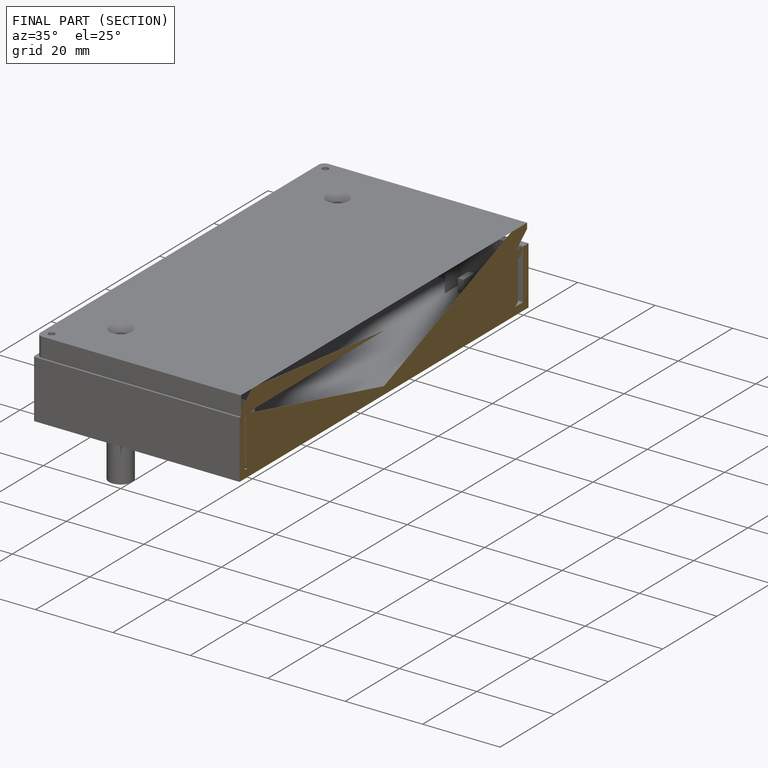
[diagram: finished part — half-section view (interior)]
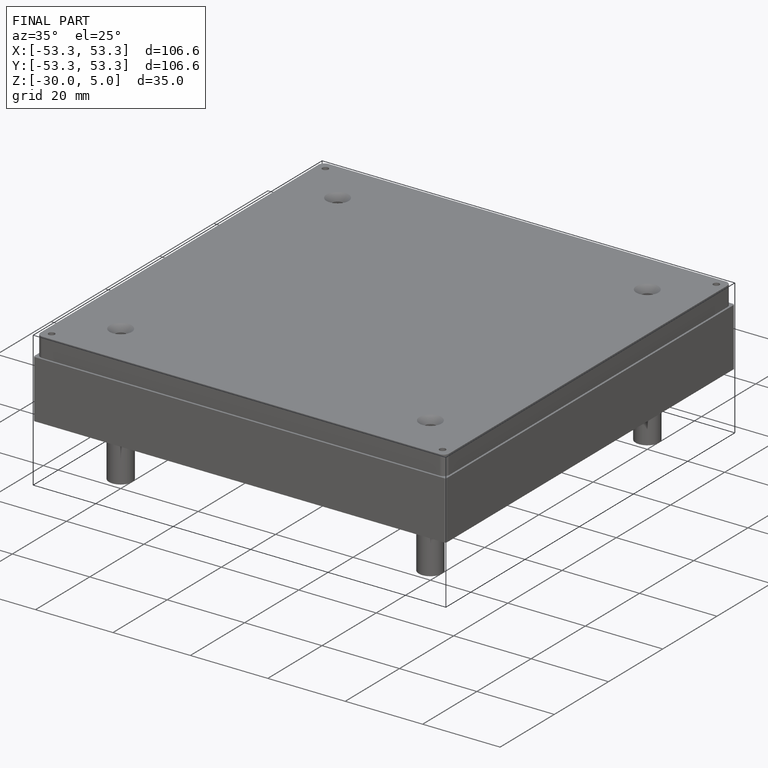
[diagram: finished part — iso view with bounding-box wireframe]
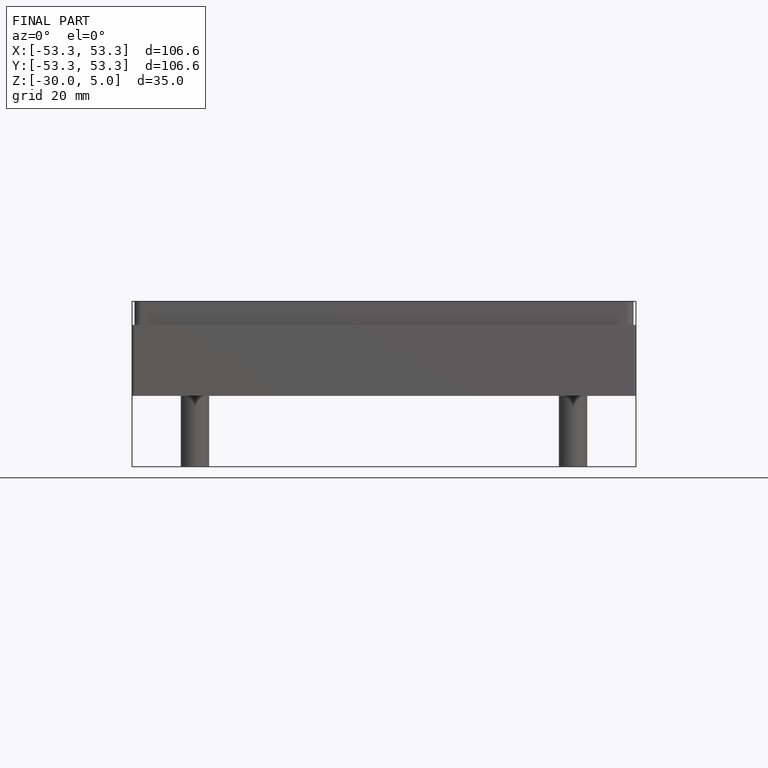
[diagram: finished part — front view with bounding-box wireframe]
